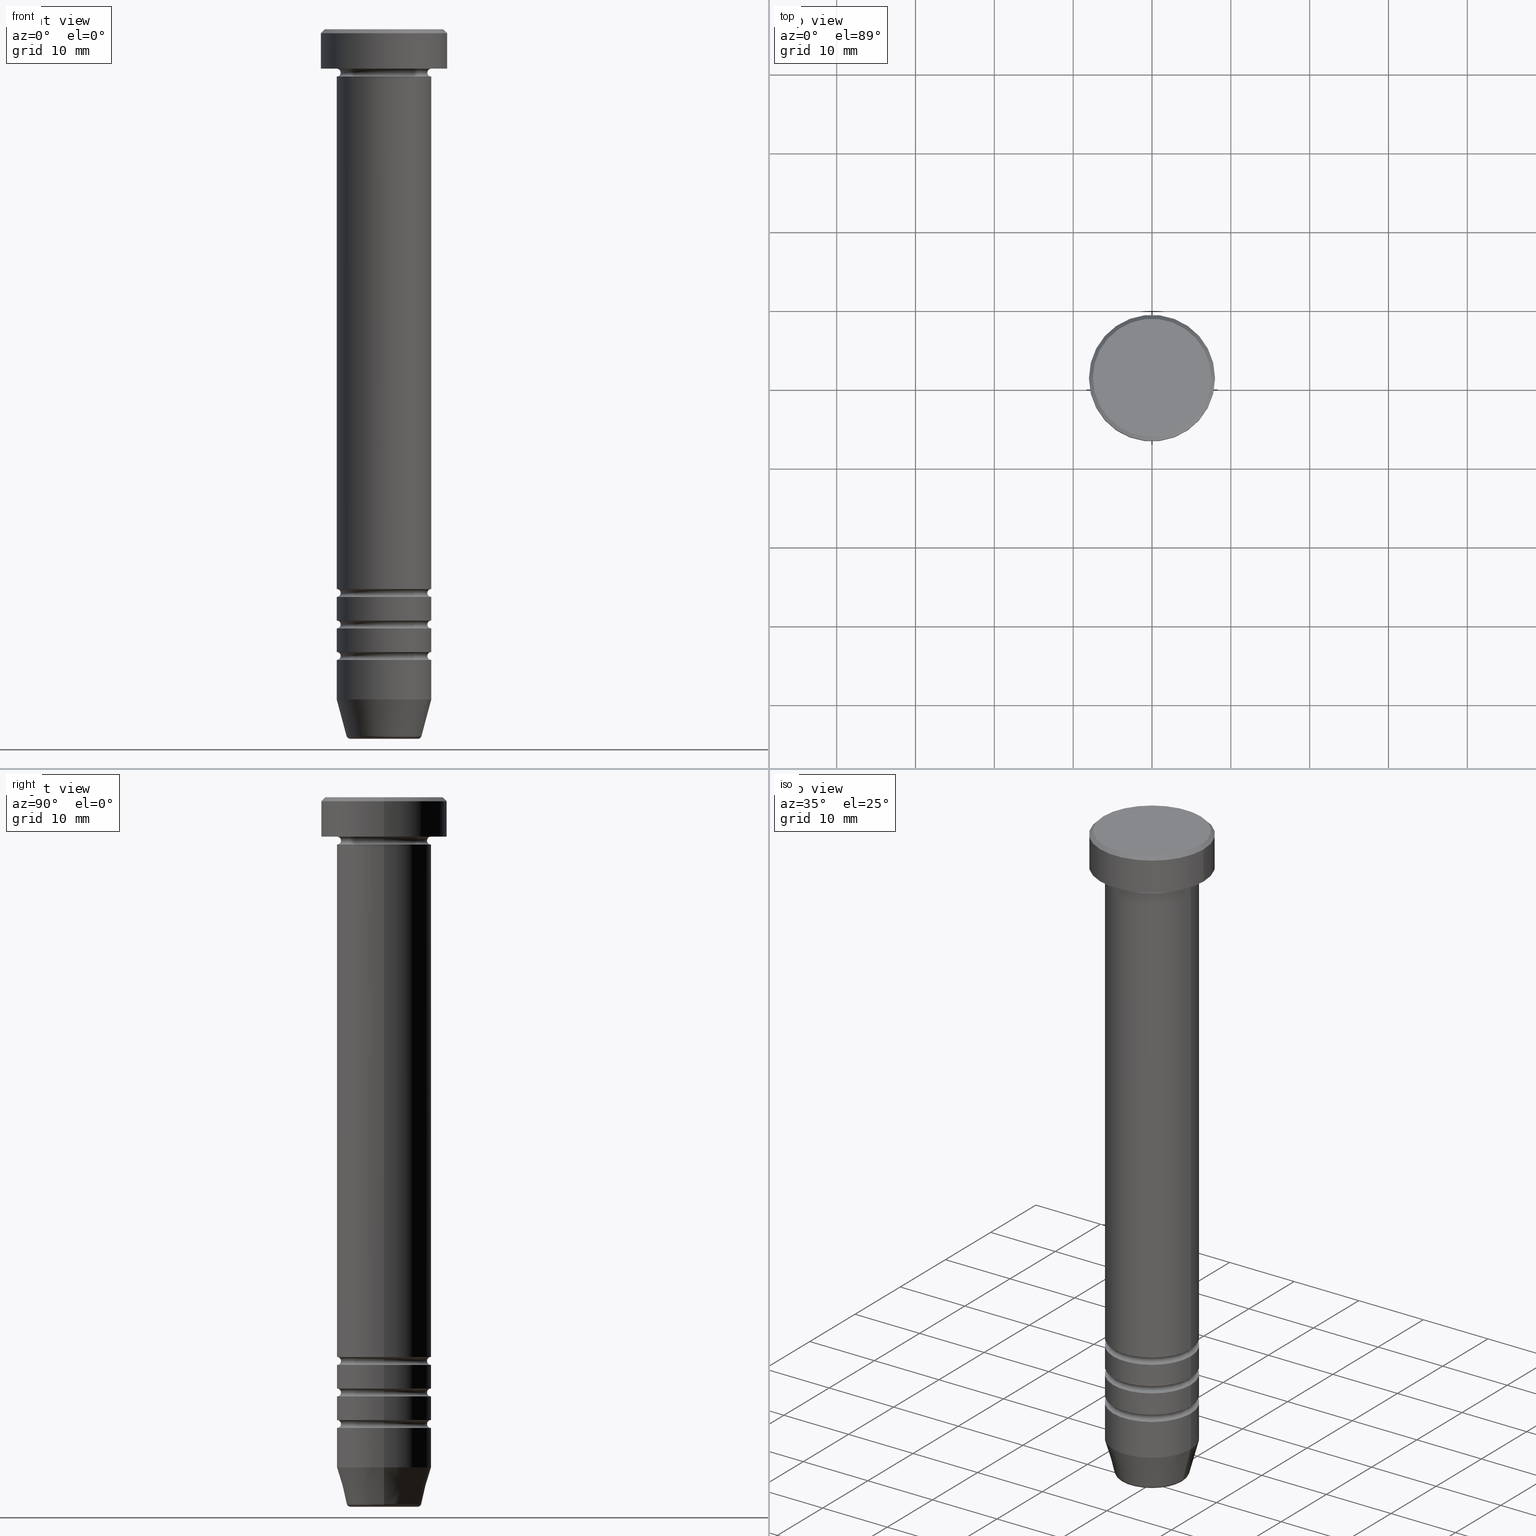
[diagram: canonical four-view strip — front | top / right | iso, engineering-drawing reading convention]
A machine part, canonical four-view strip (front | top / right | iso — engineering-drawing reading convention). The complete STEP part file that produces these views, byte-faithful:
ISO-10303-21;
HEADER;
FILE_DESCRIPTION (( 'STEP AP203' ),
    '1' );
FILE_NAME ('9cf8.STEP',
    '2024-01-03T00:05:37',
    ( '' ),
    ( '' ),
    'SwSTEP 2.0',
    'SolidWorks 2019',
    '' );
FILE_SCHEMA (( 'CONFIG_CONTROL_DESIGN' ));
ENDSEC;

DATA;
#1 = ORIENTED_EDGE ( 'NONE', *, *, #320, .T. ) ;
#2 = CARTESIAN_POINT ( 'NONE',  ( 0.000000000000000000, 0.000000000000000000, -79.49999999999998579 ) ) ;
#3 = AXIS2_PLACEMENT_3D ( 'NONE', #391, #987, #982 ) ;
#4 = CARTESIAN_POINT ( 'NONE',  ( -6.000000000000000000, 7.347880794884119736E-16, -5.500000000000001776 ) ) ;
#5 = CARTESIAN_POINT ( 'NONE',  ( 0.000000000000000000, 0.000000000000000000, 0.000000000000000000 ) ) ;
#6 = VECTOR ( 'NONE', #440, 1000.000000000000000 ) ;
#7 = AXIS2_PLACEMENT_3D ( 'NONE', #370, #959, #219 ) ;
#8 = EDGE_CURVE ( 'NONE', #571, #529, #403, .T. ) ;
#9 = ORIENTED_EDGE ( 'NONE', *, *, #183, .T. ) ;
#10 = CARTESIAN_POINT ( 'NONE',  ( -5.500000000000000000, 7.041719095097280880E-16, -5.500000000000001776 ) ) ;
#11 = LINE ( 'NONE', #894, #713 ) ;
#12 = DIRECTION ( 'NONE',  ( 1.000000000000000000, 0.000000000000000000, 0.000000000000000000 ) ) ;
#13 = ORIENTED_EDGE ( 'NONE', *, *, #422, .T. ) ;
#14 = ADVANCED_FACE ( 'NONE', ( #662 ), #396, .T. ) ;
#15 = CARTESIAN_POINT ( 'NONE',  ( 0.000000000000000000, 0.000000000000000000, -89.50000000000000000 ) ) ;
#16 = VERTEX_POINT ( 'NONE', #828 ) ;
#17 = EDGE_LOOP ( 'NONE', ( #397, #871, #921, #281 ) ) ;
#18 = AXIS2_PLACEMENT_3D ( 'NONE', #344, #687, #981 ) ;
#19 = CARTESIAN_POINT ( 'NONE',  ( 8.000000000000000000, 0.000000000000000000, -5.000000000000000000 ) ) ;
#20 = ORIENTED_EDGE ( 'NONE', *, *, #594, .F. ) ;
#21 = CIRCLE ( 'NONE', #622, 0.5000000000000004441 ) ;
#22 = CARTESIAN_POINT ( 'NONE',  ( -6.000000000000000000, 0.000000000000000000, -5.500000000000001776 ) ) ;
#23 = CARTESIAN_POINT ( 'NONE',  ( 5.999999999999994671, 0.000000000000000000, -79.49999999999998579 ) ) ;
#24 = EDGE_CURVE ( 'NONE', #286, #28, #541, .T. ) ;
#25 = PERSON_AND_ORGANIZATION_ROLE ( 'design_owner' ) ;
#26 = EDGE_LOOP ( 'NONE', ( #535, #307, #1009, #296 ) ) ;
#27 = DIRECTION ( 'NONE',  ( 0.000000000000000000, 0.000000000000000000, -1.000000000000000000 ) ) ;
#28 = VERTEX_POINT ( 'NONE', #186 ) ;
#29 = COORDINATED_UNIVERSAL_TIME_OFFSET ( 1, 0, .AHEAD. ) ;
#30 = ORIENTED_EDGE ( 'NONE', *, *, #617, .F. ) ;
#31 = PLANE ( 'NONE',  #1024 ) ;
#32 = ORIENTED_EDGE ( 'NONE', *, *, #379, .F. ) ;
#33 = AXIS2_PLACEMENT_3D ( 'NONE', #150, #395, #580 ) ;
#34 = CARTESIAN_POINT ( 'NONE',  ( 0.000000000000000000, 0.000000000000000000, -79.49999999999998579 ) ) ;
#35 = PERSON_AND_ORGANIZATION ( #578, #404 ) ;
#36 = ORIENTED_EDGE ( 'NONE', *, *, #919, .T. ) ;
#37 = FACE_OUTER_BOUND ( 'NONE', #642, .T. ) ;
#38 = ORIENTED_EDGE ( 'NONE', *, *, #881, .T. ) ;
#39 = CIRCLE ( 'NONE', #1006, 0.5000000000000004441 ) ;
#40 = EDGE_CURVE ( 'NONE', #1019, #49, #950, .T. ) ;
#41 = CIRCLE ( 'NONE', #603, 6.000000000000000000 ) ;
#42 = AXIS2_PLACEMENT_3D ( 'NONE', #145, #551, #144 ) ;
#43 = CARTESIAN_POINT ( 'NONE',  ( 0.000000000000000000, 0.000000000000000000, -5.000000000000000000 ) ) ;
#44 = APPROVAL_ROLE ( '' ) ;
#45 = DIRECTION ( 'NONE',  ( -1.000000000000000000, 0.000000000000000000, -0.000000000000000000 ) ) ;
#46 = ORIENTED_EDGE ( 'NONE', *, *, #1056, .T. ) ;
#47 = ADVANCED_FACE ( 'NONE', ( #1011 ), #655, .T. ) ;
#48 = DIRECTION ( 'NONE',  ( -0.000000000000000000, -0.000000000000000000, 1.000000000000000000 ) ) ;
#49 = VERTEX_POINT ( 'NONE', #255 ) ;
#50 = CARTESIAN_POINT ( 'NONE',  ( -6.000000000000000888, 7.347880794884120722E-16, -22.50000000000000000 ) ) ;
#51 = ORIENTED_EDGE ( 'NONE', *, *, #527, .T. ) ;
#52 = ORIENTED_EDGE ( 'NONE', *, *, #809, .T. ) ;
#53 = DIRECTION ( 'NONE',  ( -1.000000000000000000, 0.000000000000000000, 0.000000000000000000 ) ) ;
#54 = ADVANCED_BREP_SHAPE_REPRESENTATION ( '9cf8', ( #488, #139, #1040 ), #478 ) ;
#55 = AXIS2_PLACEMENT_3D ( 'NONE', #666, #389, #736 ) ;
#56 = CIRCLE ( 'NONE', #929, 0.5000000000000004441 ) ;
#57 = TOROIDAL_SURFACE ( 'NONE', #703, 6.000000000000000000, 0.5000000000000000000 ) ;
#58 = CARTESIAN_POINT ( 'NONE',  ( 0.000000000000000000, 0.000000000000000000, -72.00000000000000000 ) ) ;
#59 = ADVANCED_FACE ( 'NONE', ( #918 ), #162, .T. ) ;
#60 = CARTESIAN_POINT ( 'NONE',  ( 0.000000000000000000, 0.000000000000000000, -22.50000000000000000 ) ) ;
#61 = CARTESIAN_POINT ( 'NONE',  ( 0.000000000000000000, 0.000000000000000000, 0.000000000000000000 ) ) ;
#62 = FACE_OUTER_BOUND ( 'NONE', #212, .T. ) ;
#63 = EDGE_CURVE ( 'NONE', #992, #484, #813, .T. ) ;
#64 = APPROVAL_PERSON_ORGANIZATION ( #35, #92, #44 ) ;
#65 = CIRCLE ( 'NONE', #297, 5.499999999999995559 ) ;
#66 = CARTESIAN_POINT ( 'NONE',  ( 0.000000000000000000, 0.000000000000000000, 0.000000000000000000 ) ) ;
#67 = TOROIDAL_SURFACE ( 'NONE', #279, 5.999999999999994671, 0.5000000000000000000 ) ;
#68 = VECTOR ( 'NONE', #789, 1000.000000000000000 ) ;
#69 = CARTESIAN_POINT ( 'NONE',  ( 0.000000000000000000, 0.000000000000000000, 0.000000000000000000 ) ) ;
#70 = CARTESIAN_POINT ( 'NONE',  ( 5.999999999999992895, 0.000000000000000000, -78.99999999999998579 ) ) ;
#71 = EDGE_CURVE ( 'NONE', #200, #251, #79, .T. ) ;
#72 = DIRECTION ( 'NONE',  ( 1.000000000000000000, 0.000000000000000000, 0.000000000000000000 ) ) ;
#73 = FACE_OUTER_BOUND ( 'NONE', #724, .T. ) ;
#74 = DIRECTION ( 'NONE',  ( -0.000000000000000000, -0.000000000000000000, 1.000000000000000000 ) ) ;
#75 = CARTESIAN_POINT ( 'NONE',  ( -6.000000000000000888, 7.347880794884120722E-16, -72.00000000000000000 ) ) ;
#76 = ORIENTED_EDGE ( 'NONE', *, *, #295, .T. ) ;
#77 = ADVANCED_FACE ( 'NONE', ( #991 ), #574, .T. ) ;
#78 = DIRECTION ( 'NONE',  ( -0.000000000000000000, -0.000000000000000000, 1.000000000000000000 ) ) ;
#79 = LINE ( 'NONE', #912, #656 ) ;
#80 = AXIS2_PLACEMENT_3D ( 'NONE', #319, #573, #667 ) ;
#81 = ORIENTED_EDGE ( 'NONE', *, *, #8, .F. ) ;
#82 = DIRECTION ( 'NONE',  ( 1.000000000000000000, 0.000000000000000000, 0.000000000000000000 ) ) ;
#83 = AXIS2_PLACEMENT_3D ( 'NONE', #94, #738, #412 ) ;
#84 = DIRECTION ( 'NONE',  ( -0.000000000000000000, -0.000000000000000000, 1.000000000000000000 ) ) ;
#85 = CIRCLE ( 'NONE', #700, 0.5000000000000004441 ) ;
#86 = DIRECTION ( 'NONE',  ( -1.000000000000000000, 0.000000000000000000, 0.000000000000000000 ) ) ;
#87 = CIRCLE ( 'NONE', #701, 4.759553456999433330 ) ;
#88 = EDGE_CURVE ( 'NONE', #484, #239, #278, .T. ) ;
#89 = AXIS2_PLACEMENT_3D ( 'NONE', #60, #464, #623 ) ;
#90 = ORIENTED_EDGE ( 'NONE', *, *, #706, .T. ) ;
#91 = DIRECTION ( 'NONE',  ( -0.000000000000000000, -0.000000000000000000, 1.000000000000000000 ) ) ;
#92 = APPROVAL ( #790, 'NEUR�EN�' ) ;
#93 = CARTESIAN_POINT ( 'NONE',  ( 0.000000000000000000, 0.000000000000000000, -75.49999999999998579 ) ) ;
#94 = CARTESIAN_POINT ( 'NONE',  ( 4.276590543854901227, 0.000000000000000000, -89.50000000000000000 ) ) ;
#95 = VERTEX_POINT ( 'NONE', #1026 ) ;
#96 = FACE_OUTER_BOUND ( 'NONE', #784, .T. ) ;
#97 = DIRECTION ( 'NONE',  ( 0.000000000000000000, 0.000000000000000000, -1.000000000000000000 ) ) ;
#98 = ORIENTED_EDGE ( 'NONE', *, *, #491, .F. ) ;
#99 = PERSON_AND_ORGANIZATION_ROLE ( 'creator' ) ;
#100 = DIRECTION ( 'NONE',  ( 1.000000000000000000, 0.000000000000000000, 0.000000000000000000 ) ) ;
#101 = CARTESIAN_POINT ( 'NONE',  ( -5.999999999999992895, 7.347880794884112834E-16, -71.00000000000000000 ) ) ;
#102 = ORIENTED_EDGE ( 'NONE', *, *, #577, .F. ) ;
#103 = EDGE_CURVE ( 'NONE', #582, #986, #387, .T. ) ;
#104 = COORDINATED_UNIVERSAL_TIME_OFFSET ( 1, 0, .AHEAD. ) ;
#105 = ORIENTED_EDGE ( 'NONE', *, *, #742, .T. ) ;
#106 = APPROVAL_PERSON_ORGANIZATION ( #610, #771, #694 ) ;
#107 = TOROIDAL_SURFACE ( 'NONE', #785, 6.000000000000000000, 0.5000000000000000000 ) ;
#108 = CIRCLE ( 'NONE', #338, 0.4999999999999995559 ) ;
#109 = DIRECTION ( 'NONE',  ( 0.000000000000000000, -1.000000000000000000, 0.000000000000000000 ) ) ;
#110 = EDGE_LOOP ( 'NONE', ( #276, #1035 ) ) ;
#111 = CC_DESIGN_PERSON_AND_ORGANIZATION_ASSIGNMENT ( #363, #838, ( #583 ) ) ;
#112 = AXIS2_PLACEMENT_3D ( 'NONE', #845, #1021, #776 ) ;
#113 = DATE_TIME_ROLE ( 'creation_date' ) ;
#114 = DIRECTION ( 'NONE',  ( -0.000000000000000000, -0.000000000000000000, 1.000000000000000000 ) ) ;
#115 = DIRECTION ( 'NONE',  ( 1.000000000000000000, 0.000000000000000000, 0.000000000000000000 ) ) ;
#116 = DIRECTION ( 'NONE',  ( 1.000000000000000000, 0.000000000000000000, 0.000000000000000000 ) ) ;
#117 = DATE_AND_TIME ( #199, #1023 ) ;
#118 = ORIENTED_EDGE ( 'NONE', *, *, #433, .F. ) ;
#119 = ADVANCED_FACE ( 'NONE', ( #842 ), #584, .F. ) ;
#120 = CYLINDRICAL_SURFACE ( 'NONE', #426, 6.000000000000000000 ) ;
#121 = CARTESIAN_POINT ( 'NONE',  ( 5.999999999999999112, 0.000000000000000000, 0.000000000000000000 ) ) ;
#122 = ORIENTED_EDGE ( 'NONE', *, *, #171, .F. ) ;
#123 = CARTESIAN_POINT ( 'NONE',  ( -5.999999999999996447, 7.347880794884115792E-16, 0.000000000000000000 ) ) ;
#124 = ORIENTED_EDGE ( 'NONE', *, *, #638, .F. ) ;
#125 = LOCAL_TIME ( 1, 5, 37.00000000000000000, #104 ) ;
#126 = ADVANCED_FACE ( 'NONE', ( #933 ), #787, .T. ) ;
#127 = DIRECTION ( 'NONE',  ( -0.000000000000000000, -0.000000000000000000, 1.000000000000000000 ) ) ;
#128 = ORIENTED_EDGE ( 'NONE', *, *, #836, .T. ) ;
#129 = TOROIDAL_SURFACE ( 'NONE', #479, 4.276590543854901227, 0.5000000000000000000 ) ;
#130 = AXIS2_PLACEMENT_3D ( 'NONE', #859, #615, #600 ) ;
#131 = EDGE_CURVE ( 'NONE', #571, #364, #633, .T. ) ;
#132 = CARTESIAN_POINT ( 'NONE',  ( -4.276590543854901227, 5.533042413640409504E-16, -90.00000000000000000 ) ) ;
#133 = DIRECTION ( 'NONE',  ( -0.000000000000000000, -0.000000000000000000, 1.000000000000000000 ) ) ;
#134 = PLANE ( 'NONE',  #196 ) ;
#135 = ORIENTED_EDGE ( 'NONE', *, *, #965, .F. ) ;
#136 = EDGE_CURVE ( 'NONE', #846, #508, #237, .T. ) ;
#137 = DIRECTION ( 'NONE',  ( 1.000000000000000000, 0.000000000000000000, 0.000000000000000000 ) ) ;
#138 = ORIENTED_EDGE ( 'NONE', *, *, #198, .T. ) ;
#139 = MANIFOLD_SOLID_BREP ( 'Zaoblit5', #879 ) ;
#140 = DIRECTION ( 'NONE',  ( 0.000000000000000000, 0.000000000000000000, -1.000000000000000000 ) ) ;
#141 = EDGE_CURVE ( 'NONE', #364, #824, #847, .T. ) ;
#142 = CIRCLE ( 'NONE', #543, 0.5000000000000004441 ) ;
#143 = AXIS2_PLACEMENT_3D ( 'NONE', #1045, #547, #312 ) ;
#144 = DIRECTION ( 'NONE',  ( -1.000000000000000000, 1.224646799147351482E-16, 0.000000000000000000 ) ) ;
#145 = CARTESIAN_POINT ( 'NONE',  ( -5.999999999999994671, 7.347880794884112834E-16, -75.49999999999998579 ) ) ;
#146 = ADVANCED_FACE ( 'NONE', ( #819 ), #129, .T. ) ;
#147 = TOROIDAL_SURFACE ( 'NONE', #945, 5.999999999999994671, 0.5000000000000000000 ) ;
#148 = CARTESIAN_POINT ( 'NONE',  ( 0.000000000000000000, 0.000000000000000000, -0.4999999999999935052 ) ) ;
#149 = CIRCLE ( 'NONE', #398, 6.000000000000000000 ) ;
#150 = CARTESIAN_POINT ( 'NONE',  ( -5.999999999999994671, 0.000000000000000000, -71.50000000000000000 ) ) ;
#151 = ADVANCED_FACE ( 'NONE', ( #249 ), #1002, .T. ) ;
#152 = CIRCLE ( 'NONE', #1004, 4.276590543854901227 ) ;
#153 = AXIS2_PLACEMENT_3D ( 'NONE', #382, #939, #507 ) ;
#154 = FACE_OUTER_BOUND ( 'NONE', #442, .T. ) ;
#155 = VERTEX_POINT ( 'NONE', #10 ) ;
#156 = AXIS2_PLACEMENT_3D ( 'NONE', #708, #534, #685 ) ;
#157 =( NAMED_UNIT ( * ) PLANE_ANGLE_UNIT ( ) SI_UNIT ( $, .RADIAN. ) );
#158 = ORIENTED_EDGE ( 'NONE', *, *, #245, .T. ) ;
#159 = DIRECTION ( 'NONE',  ( -1.000000000000000000, 0.000000000000000000, 0.000000000000000000 ) ) ;
#160 = FACE_OUTER_BOUND ( 'NONE', #436, .T. ) ;
#161 = DIRECTION ( 'NONE',  ( 0.000000000000000000, 0.000000000000000000, -1.000000000000000000 ) ) ;
#162 = CYLINDRICAL_SURFACE ( 'NONE', #762, 5.999999999999996447 ) ;
#163 = EDGE_LOOP ( 'NONE', ( #946, #563, #36, #924 ) ) ;
#164 = DIRECTION ( 'NONE',  ( 1.000000000000000000, 0.000000000000000000, 0.000000000000000000 ) ) ;
#165 = CARTESIAN_POINT ( 'NONE',  ( 0.000000000000000000, 0.000000000000000000, -5.500000000000001776 ) ) ;
#166 = FACE_OUTER_BOUND ( 'NONE', #863, .T. ) ;
#167 = EDGE_CURVE ( 'NONE', #508, #1057, #892, .T. ) ;
#168 = CARTESIAN_POINT ( 'NONE',  ( 0.000000000000000000, 0.000000000000000000, -75.99999999999998579 ) ) ;
#169 = CARTESIAN_POINT ( 'NONE',  ( 6.000000000000000000, 0.000000000000000000, -79.99999999999998579 ) ) ;
#170 = EDGE_LOOP ( 'NONE', ( #1001, #510 ) ) ;
#171 = EDGE_CURVE ( 'NONE', #949, #575, #728, .T. ) ;
#172 = CARTESIAN_POINT ( 'NONE',  ( -5.999999999999999112, 7.347880794884118750E-16, 0.000000000000000000 ) ) ;
#173 = VECTOR ( 'NONE', #983, 1000.000000000000114 ) ;
#174 = DIRECTION ( 'NONE',  ( -1.000000000000000000, 0.000000000000000000, 0.000000000000000000 ) ) ;
#175 = CIRCLE ( 'NONE', #1054, 6.000000000000000000 ) ;
#176 = AXIS2_PLACEMENT_3D ( 'NONE', #794, #114, #607 ) ;
#177 = DIRECTION ( 'NONE',  ( 1.000000000000000000, 0.000000000000000000, 0.000000000000000000 ) ) ;
#178 = ORIENTED_EDGE ( 'NONE', *, *, #462, .F. ) ;
#179 = DIRECTION ( 'NONE',  ( 0.000000000000000000, -0.000000000000000000, 1.000000000000000000 ) ) ;
#180 = ORIENTED_EDGE ( 'NONE', *, *, #638, .T. ) ;
#181 = COORDINATED_UNIVERSAL_TIME_OFFSET ( 1, 0, .AHEAD. ) ;
#182 = DIRECTION ( 'NONE',  ( 0.000000000000000000, 0.000000000000000000, -1.000000000000000000 ) ) ;
#183 = EDGE_CURVE ( 'NONE', #49, #508, #490, .T. ) ;
#184 = ORIENTED_EDGE ( 'NONE', *, *, #1032, .F. ) ;
#185 = ORIENTED_EDGE ( 'NONE', *, *, #965, .T. ) ;
#186 = CARTESIAN_POINT ( 'NONE',  ( -6.000000000000000000, 0.000000000000000000, -5.000000000000000888 ) ) ;
#187 = CARTESIAN_POINT ( 'NONE',  ( 0.000000000000000000, -3.469446951953614189E-15, -22.50000000000000000 ) ) ;
#188 = ORIENTED_EDGE ( 'NONE', *, *, #433, .T. ) ;
#189 = ADVANCED_FACE ( 'NONE', ( #572 ), #866, .F. ) ;
#190 = CALENDAR_DATE ( 2024, 3, 1 ) ;
#191 = ORIENTED_EDGE ( 'NONE', *, *, #594, .T. ) ;
#192 = CIRCLE ( 'NONE', #804, 8.000000000000000000 ) ;
#193 = AXIS2_PLACEMENT_3D ( 'NONE', #825, #179, #82 ) ;
#194 = DIRECTION ( 'NONE',  ( 1.000000000000000000, 0.000000000000000000, 0.000000000000000000 ) ) ;
#195 = ORIENTED_EDGE ( 'NONE', *, *, #800, .T. ) ;
#196 = AXIS2_PLACEMENT_3D ( 'NONE', #888, #798, #712 ) ;
#197 = CARTESIAN_POINT ( 'NONE',  ( 0.000000000000000000, 0.000000000000000000, -75.49999999999998579 ) ) ;
#198 = EDGE_CURVE ( 'NONE', #529, #901, #39, .T. ) ;
#199 = CALENDAR_DATE ( 2024, 3, 1 ) ;
#200 = VERTEX_POINT ( 'NONE', #326 ) ;
#201 = DIRECTION ( 'NONE',  ( 1.000000000000000000, 0.000000000000000000, 0.000000000000000000 ) ) ;
#202 = VERTEX_POINT ( 'NONE', #752 ) ;
#203 = DIRECTION ( 'NONE',  ( 0.000000000000000000, 0.000000000000000000, -1.000000000000000000 ) ) ;
#204 = EDGE_CURVE ( 'NONE', #865, #202, #678, .T. ) ;
#205 = CARTESIAN_POINT ( 'NONE',  ( -6.000000000000000000, 7.347880794884119736E-16, 0.000000000000000000 ) ) ;
#206 = CALENDAR_DATE ( 2024, 3, 1 ) ;
#207 = CARTESIAN_POINT ( 'NONE',  ( 0.000000000000000000, 6.000000000000000000, -22.50000000000000000 ) ) ;
#208 = EDGE_LOOP ( 'NONE', ( #632, #698, #801, #657 ) ) ;
#209 = ORIENTED_EDGE ( 'NONE', *, *, #217, .F. ) ;
#210 = PRODUCT_DEFINITION_FORMATION_WITH_SPECIFIED_SOURCE ( 'LIBOVOLN�', '', #873, .NOT_KNOWN. ) ;
#211 = CARTESIAN_POINT ( 'NONE',  ( 0.000000000000000000, 0.000000000000000000, -71.50000000000000000 ) ) ;
#212 = EDGE_LOOP ( 'NONE', ( #270, #81, #553, #1031 ) ) ;
#213 = AXIS2_PLACEMENT_3D ( 'NONE', #1003, #504, #100 ) ;
#214 = AXIS2_PLACEMENT_3D ( 'NONE', #731, #568, #164 ) ;
#215 = CIRCLE ( 'NONE', #932, 0.5000000000000004441 ) ;
#216 = FACE_OUTER_BOUND ( 'NONE', #770, .T. ) ;
#217 = EDGE_CURVE ( 'NONE', #1019, #497, #152, .T. ) ;
#218 = CARTESIAN_POINT ( 'NONE',  ( -4.660254037844381081, 5.707165190659649910E-16, -90.00000000000000000 ) ) ;
#219 = DIRECTION ( 'NONE',  ( 1.000000000000000000, 0.000000000000000000, 0.000000000000000000 ) ) ;
#220 = CIRCLE ( 'NONE', #962, 8.000000000000000000 ) ;
#221 = AXIS2_PLACEMENT_3D ( 'NONE', #339, #243, #492 ) ;
#222 = TOROIDAL_SURFACE ( 'NONE', #830, 5.999999999999994671, 0.5000000000000000000 ) ;
#223 = CIRCLE ( 'NONE', #130, 5.999999999999992895 ) ;
#224 = AXIS2_PLACEMENT_3D ( 'NONE', #226, #957, #885 ) ;
#225 = EDGE_CURVE ( 'NONE', #1037, #300, #579, .T. ) ;
#226 = CARTESIAN_POINT ( 'NONE',  ( 0.000000000000000000, 0.000000000000000000, -79.49999999999998579 ) ) ;
#227 = ORIENTED_EDGE ( 'NONE', *, *, #167, .F. ) ;
#228 = DIRECTION ( 'NONE',  ( -0.000000000000000000, -0.000000000000000000, 1.000000000000000000 ) ) ;
#229 = CARTESIAN_POINT ( 'NONE',  ( 5.999999999999994671, 7.347880794884112834E-16, -75.49999999999998579 ) ) ;
#230 = EDGE_CURVE ( 'NONE', #986, #575, #65, .T. ) ;
#231 = DIRECTION ( 'NONE',  ( 1.000000000000000000, 0.000000000000000000, 0.000000000000000000 ) ) ;
#232 = ADVANCED_FACE ( 'NONE', ( #646 ), #978, .T. ) ;
#233 = DIRECTION ( 'NONE',  ( 1.000000000000000000, 0.000000000000000000, 0.000000000000000000 ) ) ;
#234 = CARTESIAN_POINT ( 'NONE',  ( 0.000000000000000000, 0.000000000000000000, 0.000000000000000000 ) ) ;
#235 = CARTESIAN_POINT ( 'NONE',  ( -5.999999999999998224, 7.347880794884118750E-16, -74.99999999999998579 ) ) ;
#236 = CC_DESIGN_APPROVAL ( #771, ( #583 ) ) ;
#237 = CIRCLE ( 'NONE', #375, 6.000000000000000000 ) ;
#238 = TOROIDAL_SURFACE ( 'NONE', #309, 4.276590543854901227, 0.5000000000000000000 ) ;
#239 = VERTEX_POINT ( 'NONE', #723 ) ;
#240 = AXIS2_PLACEMENT_3D ( 'NONE', #455, #719, #970 ) ;
#241 = DIRECTION ( 'NONE',  ( 1.000000000000000000, 0.000000000000000000, 0.000000000000000000 ) ) ;
#242 = CARTESIAN_POINT ( 'NONE',  ( 5.500000000000000000, 0.000000000000000000, -5.500000000000001776 ) ) ;
#243 = DIRECTION ( 'NONE',  ( -0.000000000000000000, -0.000000000000000000, 1.000000000000000000 ) ) ;
#244 = EDGE_LOOP ( 'NONE', ( #644, #138, #670, #608 ) ) ;
#245 = EDGE_CURVE ( 'NONE', #1057, #292, #602, .T. ) ;
#246 = FACE_OUTER_BOUND ( 'NONE', #663, .T. ) ;
#247 = ORIENTED_EDGE ( 'NONE', *, *, #420, .T. ) ;
#248 = DIRECTION ( 'NONE',  ( -0.000000000000000000, -0.000000000000000000, 1.000000000000000000 ) ) ;
#249 = FACE_OUTER_BOUND ( 'NONE', #458, .T. ) ;
#250 = CARTESIAN_POINT ( 'NONE',  ( 0.000000000000000000, 0.000000000000000000, -72.00000000000000000 ) ) ;
#251 = VERTEX_POINT ( 'NONE', #1052 ) ;
#252 = DIRECTION ( 'NONE',  ( 1.000000000000000000, 0.000000000000000000, 0.000000000000000000 ) ) ;
#253 = ORIENTED_EDGE ( 'NONE', *, *, #557, .F. ) ;
#254 = DIRECTION ( 'NONE',  ( -0.000000000000000000, -0.000000000000000000, 1.000000000000000000 ) ) ;
#255 = CARTESIAN_POINT ( 'NONE',  ( 4.759553456999433330, 0.000000000000000000, -89.62940952255125637 ) ) ;
#256 = CARTESIAN_POINT ( 'NONE',  ( 6.000000000000000000, 0.000000000000000000, -22.50000000000000000 ) ) ;
#257 = DIRECTION ( 'NONE',  ( -0.000000000000000000, -0.000000000000000000, 1.000000000000000000 ) ) ;
#258 = EDGE_LOOP ( 'NONE', ( #264, #423, #734, #994 ) ) ;
#259 = ORIENTED_EDGE ( 'NONE', *, *, #136, .F. ) ;
#260 = AXIS2_PLACEMENT_3D ( 'NONE', #324, #581, #182 ) ;
#261 = ADVANCED_FACE ( 'NONE', ( #475 ), #107, .F. ) ;
#262 = DIRECTION ( 'NONE',  ( -0.000000000000000000, -0.000000000000000000, 1.000000000000000000 ) ) ;
#263 = CIRCLE ( 'NONE', #763, 4.276590543854901227 ) ;
#264 = ORIENTED_EDGE ( 'NONE', *, *, #732, .T. ) ;
#265 = CYLINDRICAL_SURFACE ( 'NONE', #848, 6.000000000000000000 ) ;
#266 = ORIENTED_EDGE ( 'NONE', *, *, #413, .F. ) ;
#267 = SECURITY_CLASSIFICATION_LEVEL ( 'unclassified' ) ;
#268 = EDGE_CURVE ( 'NONE', #1014, #937, #928, .T. ) ;
#269 = PLANE ( 'NONE',  #1042 ) ;
#270 = ORIENTED_EDGE ( 'NONE', *, *, #198, .F. ) ;
#271 = EDGE_CURVE ( 'NONE', #711, #251, #192, .T. ) ;
#272 = FACE_OUTER_BOUND ( 'NONE', #329, .T. ) ;
#273 = ORIENTED_EDGE ( 'NONE', *, *, #420, .F. ) ;
#274 = LINE ( 'NONE', #696, #6 ) ;
#275 = FACE_BOUND ( 'NONE', #682, .T. ) ;
#276 = ORIENTED_EDGE ( 'NONE', *, *, #1048, .F. ) ;
#277 = ADVANCED_FACE ( 'NONE', ( #747 ), #465, .T. ) ;
#278 = CIRCLE ( 'NONE', #213, 6.000000000000000000 ) ;
#279 = AXIS2_PLACEMENT_3D ( 'NONE', #34, #688, #786 ) ;
#280 = DIRECTION ( 'NONE',  ( -1.000000000000000000, 0.000000000000000000, -0.000000000000000000 ) ) ;
#281 = ORIENTED_EDGE ( 'NONE', *, *, #88, .T. ) ;
#282 = AXIS2_PLACEMENT_3D ( 'NONE', #435, #287, #783 ) ;
#283 = ADVANCED_FACE ( 'NONE', ( #246 ), #908, .T. ) ;
#284 = CARTESIAN_POINT ( 'NONE',  ( 0.000000000000000000, 0.000000000000000000, -5.500000000000001776 ) ) ;
#285 = DATE_AND_TIME ( #349, #618 ) ;
#286 = VERTEX_POINT ( 'NONE', #735 ) ;
#287 = DIRECTION ( 'NONE',  ( 0.000000000000000000, 0.000000000000000000, -1.000000000000000000 ) ) ;
#288 = ORIENTED_EDGE ( 'NONE', *, *, #706, .F. ) ;
#289 = DIRECTION ( 'NONE',  ( -0.000000000000000000, -0.000000000000000000, 1.000000000000000000 ) ) ;
#290 = ORIENTED_EDGE ( 'NONE', *, *, #782, .F. ) ;
#291 = DIRECTION ( 'NONE',  ( -0.000000000000000000, -0.000000000000000000, 1.000000000000000000 ) ) ;
#292 = VERTEX_POINT ( 'NONE', #483 ) ;
#293 = CIRCLE ( 'NONE', #80, 7.500000000000009770 ) ;
#294 = ORIENTED_EDGE ( 'NONE', *, *, #268, .F. ) ;
#295 = EDGE_CURVE ( 'NONE', #937, #202, #142, .T. ) ;
#296 = ORIENTED_EDGE ( 'NONE', *, *, #40, .F. ) ;
#297 = AXIS2_PLACEMENT_3D ( 'NONE', #2, #476, #499 ) ;
#298 = AXIS2_PLACEMENT_3D ( 'NONE', #521, #447, #926 ) ;
#299 = CIRCLE ( 'NONE', #176, 5.999999999999992895 ) ;
#300 = VERTEX_POINT ( 'NONE', #75 ) ;
#301 = DIRECTION ( 'NONE',  ( 1.000000000000000000, 0.000000000000000000, 0.000000000000000000 ) ) ;
#302 = DIRECTION ( 'NONE',  ( -1.224646799147353207E-16, 1.000000000000000000, 0.000000000000000000 ) ) ;
#303 = ORIENTED_EDGE ( 'NONE', *, *, #491, .T. ) ;
#304 = EDGE_CURVE ( 'NONE', #155, #28, #85, .T. ) ;
#305 = CIRCLE ( 'NONE', #651, 5.499999999999995559 ) ;
#306 = CARTESIAN_POINT ( 'NONE',  ( 5.999999999999994671, 7.347880794884112834E-16, -71.50000000000000000 ) ) ;
#307 = ORIENTED_EDGE ( 'NONE', *, *, #462, .T. ) ;
#308 = AXIS2_PLACEMENT_3D ( 'NONE', #61, #289, #137 ) ;
#309 = AXIS2_PLACEMENT_3D ( 'NONE', #384, #228, #597 ) ;
#310 = ADVANCED_FACE ( 'NONE', ( #96 ), #222, .F. ) ;
#311 = AXIS2_PLACEMENT_3D ( 'NONE', #207, #449, #45 ) ;
#312 = DIRECTION ( 'NONE',  ( 1.000000000000000000, 0.000000000000000000, 0.000000000000000000 ) ) ;
#313 = CARTESIAN_POINT ( 'NONE',  ( -6.000000000000000000, 7.347880794884119736E-16, -22.50000000000000000 ) ) ;
#314 = ORIENTED_EDGE ( 'NONE', *, *, #627, .T. ) ;
#315 = DIRECTION ( 'NONE',  ( -1.000000000000000000, 1.224646799147351482E-16, 0.000000000000000000 ) ) ;
#316 = DIRECTION ( 'NONE',  ( 1.000000000000000000, 0.000000000000000000, 0.000000000000000000 ) ) ;
#317 = FACE_OUTER_BOUND ( 'NONE', #26, .T. ) ;
#318 = TOROIDAL_SURFACE ( 'NONE', #876, 5.999999999999994671, 0.5000000000000000000 ) ;
#319 = CARTESIAN_POINT ( 'NONE',  ( 0.000000000000000000, 0.000000000000000000, 0.000000000000000000 ) ) ;
#320 = EDGE_CURVE ( 'NONE', #824, #364, #357, .T. ) ;
#321 = DIRECTION ( 'NONE',  ( 0.000000000000000000, 0.000000000000000000, -1.000000000000000000 ) ) ;
#322 = ORIENTED_EDGE ( 'NONE', *, *, #717, .T. ) ;
#323 = DIRECTION ( 'NONE',  ( 1.000000000000000000, 0.000000000000000000, 0.000000000000000000 ) ) ;
#324 = CARTESIAN_POINT ( 'NONE',  ( 6.000000000000000000, 0.000000000000000000, -5.500000000000001776 ) ) ;
#325 = ORIENTED_EDGE ( 'NONE', *, *, #63, .F. ) ;
#326 = CARTESIAN_POINT ( 'NONE',  ( 7.500000000000009770, 9.491012693391993703E-16, 0.000000000000000000 ) ) ;
#327 = DIRECTION ( 'NONE',  ( -0.7071067811865451302, 0.000000000000000000, -0.7071067811865500152 ) ) ;
#328 = DIRECTION ( 'NONE',  ( 1.000000000000000000, 0.000000000000000000, 0.000000000000000000 ) ) ;
#329 = EDGE_LOOP ( 'NONE', ( #837, #955, #690, #501 ) ) ;
#330 = EDGE_CURVE ( 'NONE', #869, #239, #354, .T. ) ;
#331 = CARTESIAN_POINT ( 'NONE',  ( 5.999999999999996447, 0.000000000000000000, 0.000000000000000000 ) ) ;
#332 = LINE ( 'NONE', #676, #1041 ) ;
#333 = ORIENTED_EDGE ( 'NONE', *, *, #887, .T. ) ;
#334 = AXIS2_PLACEMENT_3D ( 'NONE', #886, #648, #727 ) ;
#335 = ADVANCED_FACE ( 'NONE', ( #585 ), #635, .F. ) ;
#336 = AXIS2_PLACEMENT_3D ( 'NONE', #418, #675, #753 ) ;
#337 = ORIENTED_EDGE ( 'NONE', *, *, #1017, .T. ) ;
#338 = AXIS2_PLACEMENT_3D ( 'NONE', #392, #898, #570 ) ;
#339 = CARTESIAN_POINT ( 'NONE',  ( 0.000000000000000000, 0.000000000000000000, 0.000000000000000000 ) ) ;
#340 = AXIS2_PLACEMENT_3D ( 'NONE', #542, #877, #140 ) ;
#341 = DIRECTION ( 'NONE',  ( 1.000000000000000000, 0.000000000000000000, 0.000000000000000000 ) ) ;
#342 = ORIENTED_EDGE ( 'NONE', *, *, #141, .F. ) ;
#343 = CC_DESIGN_PERSON_AND_ORGANIZATION_ASSIGNMENT ( #503, #25, ( #873 ) ) ;
#344 = CARTESIAN_POINT ( 'NONE',  ( 0.000000000000000000, 0.000000000000000000, -74.99999999999998579 ) ) ;
#345 = DIRECTION ( 'NONE',  ( 0.000000000000000000, 0.000000000000000000, -1.000000000000000000 ) ) ;
#346 = APPROVAL_DATE_TIME ( #758, #92 ) ;
#347 = ORIENTED_EDGE ( 'NONE', *, *, #552, .T. ) ;
#348 = CARTESIAN_POINT ( 'NONE',  ( 0.000000000000000000, 0.000000000000000000, -90.00000000000000000 ) ) ;
#349 = CALENDAR_DATE ( 2024, 3, 1 ) ;
#350 = ORIENTED_EDGE ( 'NONE', *, *, #141, .T. ) ;
#351 = EDGE_CURVE ( 'NONE', #795, #846, #531, .T. ) ;
#352 = DIRECTION ( 'NONE',  ( 0.000000000000000000, 0.000000000000000000, -1.000000000000000000 ) ) ;
#353 = ORIENTED_EDGE ( 'NONE', *, *, #383, .T. ) ;
#354 = LINE ( 'NONE', #671, #495 ) ;
#355 = LINE ( 'NONE', #989, #716 ) ;
#356 = DATE_AND_TIME ( #190, #425 ) ;
#357 = CIRCLE ( 'NONE', #967, 6.000000000000000000 ) ;
#358 = TOROIDAL_SURFACE ( 'NONE', #915, 5.999999999999994671, 0.5000000000000000000 ) ;
#359 = DIRECTION ( 'NONE',  ( -0.000000000000000000, -0.000000000000000000, 1.000000000000000000 ) ) ;
#360 = EDGE_LOOP ( 'NONE', ( #191, #605, #891, #227 ) ) ;
#361 = TOROIDAL_SURFACE ( 'NONE', #224, 5.999999999999994671, 0.5000000000000000000 ) ;
#362 = DIRECTION ( 'NONE',  ( -0.000000000000000000, -0.000000000000000000, 1.000000000000000000 ) ) ;
#363 = PERSON_AND_ORGANIZATION ( #578, #404 ) ;
#364 = VERTEX_POINT ( 'NONE', #614 ) ;
#365 = FACE_OUTER_BOUND ( 'NONE', #110, .T. ) ;
#366 = VERTEX_POINT ( 'NONE', #453 ) ;
#367 = ADVANCED_FACE ( 'NONE', ( #715 ), #480, .T. ) ;
#368 = DIRECTION ( 'NONE',  ( -0.000000000000000000, -0.000000000000000000, 1.000000000000000000 ) ) ;
#369 = ORIENTED_EDGE ( 'NONE', *, *, #993, .F. ) ;
#370 = CARTESIAN_POINT ( 'NONE',  ( 0.000000000000000000, 0.000000000000000000, -5.500000000000001776 ) ) ;
#371 = ORIENTED_EDGE ( 'NONE', *, *, #919, .F. ) ;
#372 = CIRCLE ( 'NONE', #33, 0.5000000000000004441 ) ;
#373 = EDGE_CURVE ( 'NONE', #300, #427, #175, .T. ) ;
#374 = DIRECTION ( 'NONE',  ( -1.000000000000000000, 0.000000000000000000, 0.000000000000000000 ) ) ;
#375 = AXIS2_PLACEMENT_3D ( 'NONE', #966, #546, #485 ) ;
#376 = AXIS2_PLACEMENT_3D ( 'NONE', #817, #973, #549 ) ;
#377 = CIRCLE ( 'NONE', #659, 6.000000000000000000 ) ;
#378 = DIRECTION ( 'NONE',  ( -1.000000000000000000, 0.000000000000000000, 0.000000000000000000 ) ) ;
#379 = EDGE_CURVE ( 'NONE', #16, #1037, #532, .T. ) ;
#380 = CARTESIAN_POINT ( 'NONE',  ( 0.000000000000000000, 0.000000000000000000, -79.49999999999998579 ) ) ;
#381 = EDGE_LOOP ( 'NONE', ( #599, #686, #9, #259 ) ) ;
#382 = CARTESIAN_POINT ( 'NONE',  ( 0.000000000000000000, 0.000000000000000000, -79.49999999999998579 ) ) ;
#383 = EDGE_CURVE ( 'NONE', #756, #251, #438, .T. ) ;
#384 = CARTESIAN_POINT ( 'NONE',  ( 0.000000000000000000, 0.000000000000000000, -89.50000000000000000 ) ) ;
#385 = ORIENTED_EDGE ( 'NONE', *, *, #268, .T. ) ;
#386 = APPROVAL_PERSON_ORGANIZATION ( #519, #971, #917 ) ;
#387 = CIRCLE ( 'NONE', #880, 0.5000000000000004441 ) ;
#388 = DIRECTION ( 'NONE',  ( -0.000000000000000000, -0.000000000000000000, 1.000000000000000000 ) ) ;
#389 = DIRECTION ( 'NONE',  ( 1.224646799147353207E-16, 1.000000000000000000, 0.000000000000000000 ) ) ;
#390 = FACE_OUTER_BOUND ( 'NONE', #244, .T. ) ;
#391 = CARTESIAN_POINT ( 'NONE',  ( 0.000000000000000000, 0.000000000000000000, -90.00000000000000000 ) ) ;
#392 = CARTESIAN_POINT ( 'NONE',  ( -4.276590543854901227, 5.237312920795743091E-16, -89.50000000000000000 ) ) ;
#393 = EDGE_CURVE ( 'NONE', #846, #292, #940, .T. ) ;
#394 = DIRECTION ( 'NONE',  ( -0.000000000000000000, -0.000000000000000000, 1.000000000000000000 ) ) ;
#395 = DIRECTION ( 'NONE',  ( -0.000000000000000000, -1.000000000000000000, -0.000000000000000000 ) ) ;
#396 = CYLINDRICAL_SURFACE ( 'NONE', #221, 8.000000000000000000 ) ;
#397 = ORIENTED_EDGE ( 'NONE', *, *, #1000, .F. ) ;
#398 = AXIS2_PLACEMENT_3D ( 'NONE', #250, #733, #316 ) ;
#399 = DIRECTION ( 'NONE',  ( 1.000000000000000000, 0.000000000000000000, 0.000000000000000000 ) ) ;
#400 = DIRECTION ( 'NONE',  ( 1.000000000000000000, 0.000000000000000000, 0.000000000000000000 ) ) ;
#401 = DIRECTION ( 'NONE',  ( 0.7071067811865451302, 8.659560562354904508E-17, -0.7071067811865500152 ) ) ;
#402 = EDGE_LOOP ( 'NONE', ( #709, #526, #1039, #294 ) ) ;
#403 = CIRCLE ( 'NONE', #334, 5.999999999999992895 ) ;
#404 = ORGANIZATION ( 'NEUR�EN�', 'NEUR�EN�', '' ) ;
#405 = AXIS2_PLACEMENT_3D ( 'NONE', #910, #822, #416 ) ;
#406 = CARTESIAN_POINT ( 'NONE',  ( 0.000000000000000000, 0.000000000000000000, -79.99999999999998579 ) ) ;
#407 = TOROIDAL_SURFACE ( 'NONE', #376, 5.999999999999994671, 0.5000000000000000000 ) ;
#408 = DIRECTION ( 'NONE',  ( -0.000000000000000000, -0.000000000000000000, 1.000000000000000000 ) ) ;
#409 = CONICAL_SURFACE ( 'NONE', #1025, 4.660254037844381081, 0.2617993877991502405 ) ;
#410 = DIRECTION ( 'NONE',  ( 1.000000000000000000, 0.000000000000000000, 0.000000000000000000 ) ) ;
#411 = DIRECTION ( 'NONE',  ( 1.000000000000000000, 0.000000000000000000, 0.000000000000000000 ) ) ;
#412 = DIRECTION ( 'NONE',  ( 0.000000000000000000, 0.000000000000000000, -1.000000000000000000 ) ) ;
#413 = EDGE_CURVE ( 'NONE', #795, #49, #87, .T. ) ;
#414 = EDGE_LOOP ( 'NONE', ( #612, #851, #616, #739 ) ) ;
#415 = DIRECTION ( 'NONE',  ( 1.000000000000000000, 0.000000000000000000, 0.000000000000000000 ) ) ;
#416 = DIRECTION ( 'NONE',  ( 1.000000000000000000, 0.000000000000000000, 0.000000000000000000 ) ) ;
#417 = APPLICATION_PROTOCOL_DEFINITION ( 'international standard', 'config_control_design', 1994, #640 ) ;
#418 = CARTESIAN_POINT ( 'NONE',  ( 0.000000000000000000, 0.000000000000000000, 0.000000000000000000 ) ) ;
#419 = ORIENTED_EDGE ( 'NONE', *, *, #230, .F. ) ;
#420 = EDGE_CURVE ( 'NONE', #529, #824, #861, .T. ) ;
#421 = ORIENTED_EDGE ( 'NONE', *, *, #167, .T. ) ;
#422 = EDGE_CURVE ( 'NONE', #672, #756, #513, .T. ) ;
#423 = ORIENTED_EDGE ( 'NONE', *, *, #577, .T. ) ;
#424 = DIRECTION ( 'NONE',  ( 1.000000000000000000, 0.000000000000000000, 0.000000000000000000 ) ) ;
#425 = LOCAL_TIME ( 1, 5, 37.00000000000000000, #434 ) ;
#426 = AXIS2_PLACEMENT_3D ( 'NONE', #793, #704, #844 ) ;
#427 = VERTEX_POINT ( 'NONE', #461 ) ;
#428 = CIRCLE ( 'NONE', #884, 6.000000000000000000 ) ;
#429 = CARTESIAN_POINT ( 'NONE',  ( -5.999999999999994671, 0.000000000000000000, -79.49999999999998579 ) ) ;
#430 = ORIENTED_EDGE ( 'NONE', *, *, #131, .F. ) ;
#431 = DIRECTION ( 'NONE',  ( -0.000000000000000000, -1.000000000000000000, -0.000000000000000000 ) ) ;
#432 = DIRECTION ( 'NONE',  ( 0.000000000000000000, 0.000000000000000000, -1.000000000000000000 ) ) ;
#433 = EDGE_CURVE ( 'NONE', #155, #992, #586, .T. ) ;
#434 = COORDINATED_UNIVERSAL_TIME_OFFSET ( 1, 0, .AHEAD. ) ;
#435 = CARTESIAN_POINT ( 'NONE',  ( 0.000000000000000000, 0.000000000000000000, 0.000000000000000000 ) ) ;
#436 = EDGE_LOOP ( 'NONE', ( #941, #185, #760, #629 ) ) ;
#437 = PRODUCT_DEFINITION ( 'NEZN�M�', '', #210, #1015 ) ;
#438 = LINE ( 'NONE', #778, #560 ) ;
#439 = ORIENTED_EDGE ( 'NONE', *, *, #271, .T. ) ;
#440 = DIRECTION ( 'NONE',  ( -0.000000000000000000, -0.000000000000000000, 1.000000000000000000 ) ) ;
#441 = FACE_OUTER_BOUND ( 'NONE', #414, .T. ) ;
#442 = EDGE_LOOP ( 'NONE', ( #456, #781, #831, #624 ) ) ;
#443 = DIRECTION ( 'NONE',  ( 1.000000000000000000, 0.000000000000000000, 0.000000000000000000 ) ) ;
#444 = ORIENTED_EDGE ( 'NONE', *, *, #1000, .T. ) ;
#445 = CARTESIAN_POINT ( 'NONE',  ( 5.999999999999994671, 7.347880794884112834E-16, -79.49999999999998579 ) ) ;
#446 = AXIS2_PLACEMENT_3D ( 'NONE', #673, #84, #399 ) ;
#447 = DIRECTION ( 'NONE',  ( 0.000000000000000000, -1.000000000000000000, 0.000000000000000000 ) ) ;
#448 = TOROIDAL_SURFACE ( 'NONE', #496, 6.000000000000000000, 0.5000000000000000000 ) ;
#449 = DIRECTION ( 'NONE',  ( 0.000000000000000000, 0.000000000000000000, -1.000000000000000000 ) ) ;
#450 = ORIENTED_EDGE ( 'NONE', *, *, #40, .T. ) ;
#451 = ADVANCED_FACE ( 'NONE', ( #154 ), #407, .F. ) ;
#452 = DIRECTION ( 'NONE',  ( -0.000000000000000000, -0.000000000000000000, 1.000000000000000000 ) ) ;
#453 = CARTESIAN_POINT ( 'NONE',  ( -7.500000000000009770, 0.000000000000000000, 0.000000000000000000 ) ) ;
#454 = EDGE_LOOP ( 'NONE', ( #122, #124, #493, #916 ) ) ;
#455 = CARTESIAN_POINT ( 'NONE',  ( 0.000000000000000000, 0.000000000000000000, -0.4999999999999935052 ) ) ;
#456 = ORIENTED_EDGE ( 'NONE', *, *, #373, .T. ) ;
#457 = ADVANCED_FACE ( 'NONE', ( #73 ), #468, .T. ) ;
#458 = EDGE_LOOP ( 'NONE', ( #677, #692, #135, #935 ) ) ;
#459 = CYLINDRICAL_SURFACE ( 'NONE', #792, 5.999999999999996447 ) ;
#460 = EDGE_LOOP ( 'NONE', ( #791, #903, #421, #974 ) ) ;
#461 = CARTESIAN_POINT ( 'NONE',  ( 6.000000000000000000, 0.000000000000000000, -72.00000000000000000 ) ) ;
#462 = EDGE_CURVE ( 'NONE', #497, #795, #108, .T. ) ;
#463 = CARTESIAN_POINT ( 'NONE',  ( 0.000000000000000000, 0.000000000000000000, 0.000000000000000000 ) ) ;
#464 = DIRECTION ( 'NONE',  ( -0.000000000000000000, -0.000000000000000000, 1.000000000000000000 ) ) ;
#465 = CONICAL_SURFACE ( 'NONE', #3, 4.660254037844381081, 0.2617993877991502405 ) ;
#466 = AXIS2_PLACEMENT_3D ( 'NONE', #429, #870, #1034 ) ;
#467 = TOROIDAL_SURFACE ( 'NONE', #606, 5.999999999999994671, 0.5000000000000000000 ) ;
#468 = CYLINDRICAL_SURFACE ( 'NONE', #832, 5.999999999999999112 ) ;
#469 = DIRECTION ( 'NONE',  ( -1.000000000000000000, 0.000000000000000000, 0.000000000000000000 ) ) ;
#470 = ADVANCED_FACE ( 'NONE', ( #160 ), #358, .F. ) ;
#471 = CARTESIAN_POINT ( 'NONE',  ( -5.499999999999995559, 7.041719095097278907E-16, -75.49999999999998579 ) ) ;
#472 = CC_DESIGN_PERSON_AND_ORGANIZATION_ASSIGNMENT ( #856, #598, ( #210 ) ) ;
#473 = DIRECTION ( 'NONE',  ( -0.000000000000000000, -0.000000000000000000, 1.000000000000000000 ) ) ;
#474 = CARTESIAN_POINT ( 'NONE',  ( 0.000000000000000000, 0.000000000000000000, 0.000000000000000000 ) ) ;
#475 = FACE_OUTER_BOUND ( 'NONE', #843, .T. ) ;
#476 = DIRECTION ( 'NONE',  ( 0.000000000000000000, 0.000000000000000000, -1.000000000000000000 ) ) ;
#477 =( NAMED_UNIT ( * ) SI_UNIT ( $, .STERADIAN. ) SOLID_ANGLE_UNIT ( ) );
#478 =( GEOMETRIC_REPRESENTATION_CONTEXT ( 3 ) GLOBAL_UNCERTAINTY_ASSIGNED_CONTEXT ( ( #681 ) ) GLOBAL_UNIT_ASSIGNED_CONTEXT ( ( #555, #157, #477 ) ) REPRESENTATION_CONTEXT ( 'NONE', 'WORKASPACE' ) );
#479 = AXIS2_PLACEMENT_3D ( 'NONE', #15, #74, #410 ) ;
#480 = CONICAL_SURFACE ( 'NONE', #814, 7.500000000000009770, 0.7853981633974447263 ) ;
#481 = ADVANCED_FACE ( 'NONE', ( #166 ), #489, .T. ) ;
#482 = CIRCLE ( 'NONE', #7, 5.500000000000000000 ) ;
#483 = CARTESIAN_POINT ( 'NONE',  ( -6.000000000000000000, 7.347880794884119736E-16, -79.99999999999998579 ) ) ;
#484 = VERTEX_POINT ( 'NONE', #1012 ) ;
#485 = DIRECTION ( 'NONE',  ( 1.000000000000000000, 0.000000000000000000, 0.000000000000000000 ) ) ;
#486 = CARTESIAN_POINT ( 'NONE',  ( 0.000000000000000000, 0.000000000000000000, 0.000000000000000000 ) ) ;
#487 = ORIENTED_EDGE ( 'NONE', *, *, #373, .F. ) ;
#488 = MANIFOLD_SOLID_BREP ( 'Zkosen�1', #812 ) ;
#489 = PLANE ( 'NONE',  #193 ) ;
#490 = LINE ( 'NONE', #1058, #173 ) ;
#491 = EDGE_CURVE ( 'NONE', #16, #202, #1008, .T. ) ;
#492 = DIRECTION ( 'NONE',  ( 1.000000000000000000, 0.000000000000000000, 0.000000000000000000 ) ) ;
#493 = ORIENTED_EDGE ( 'NONE', *, *, #103, .T. ) ;
#494 = AXIS2_PLACEMENT_3D ( 'NONE', #997, #593, #86 ) ;
#495 = VECTOR ( 'NONE', #999, 1000.000000000000000 ) ;
#496 = AXIS2_PLACEMENT_3D ( 'NONE', #284, #203, #661 ) ;
#497 = VERTEX_POINT ( 'NONE', #132 ) ;
#498 = AXIS2_PLACEMENT_3D ( 'NONE', #864, #291, #201 ) ;
#499 = DIRECTION ( 'NONE',  ( 1.000000000000000000, 0.000000000000000000, 0.000000000000000000 ) ) ;
#500 = ADVANCED_FACE ( 'NONE', ( #858 ), #120, .T. ) ;
#501 = ORIENTED_EDGE ( 'NONE', *, *, #24, .F. ) ;
#502 = EDGE_LOOP ( 'NONE', ( #385, #76, #337, #371 ) ) ;
#503 = PERSON_AND_ORGANIZATION ( #578, #404 ) ;
#504 = DIRECTION ( 'NONE',  ( -0.000000000000000000, -0.000000000000000000, 1.000000000000000000 ) ) ;
#505 = ORIENTED_EDGE ( 'NONE', *, *, #617, .T. ) ;
#506 = CARTESIAN_POINT ( 'NONE',  ( 0.000000000000000000, 0.000000000000000000, 0.000000000000000000 ) ) ;
#507 = DIRECTION ( 'NONE',  ( 1.000000000000000000, 0.000000000000000000, 0.000000000000000000 ) ) ;
#508 = VERTEX_POINT ( 'NONE', #768 ) ;
#509 = DIRECTION ( 'NONE',  ( -0.000000000000000000, -0.000000000000000000, 1.000000000000000000 ) ) ;
#510 = ORIENTED_EDGE ( 'NONE', *, *, #836, .F. ) ;
#511 = EDGE_CURVE ( 'NONE', #567, #869, #636, .T. ) ;
#512 = AXIS2_PLACEMENT_3D ( 'NONE', #234, #554, #252 ) ;
#513 = CIRCLE ( 'NONE', #895, 8.000000000000000000 ) ;
#514 = PERSON_AND_ORGANIZATION ( #578, #404 ) ;
#515 = EDGE_LOOP ( 'NONE', ( #288, #799, #1047, #369 ) ) ;
#516 = VECTOR ( 'NONE', #127, 1000.000000000000000 ) ;
#517 = DIRECTION ( 'NONE',  ( 0.000000000000000000, 0.000000000000000000, -1.000000000000000000 ) ) ;
#518 = CARTESIAN_POINT ( 'NONE',  ( 0.000000000000000000, 0.000000000000000000, -74.99999999999998579 ) ) ;
#519 = PERSON_AND_ORGANIZATION ( #578, #404 ) ;
#520 = ORIENTED_EDGE ( 'NONE', *, *, #645, .T. ) ;
#521 = CARTESIAN_POINT ( 'NONE',  ( 5.999999999999994671, 0.000000000000000000, -75.49999999999998579 ) ) ;
#522 = DIRECTION ( 'NONE',  ( 1.000000000000000000, 0.000000000000000000, 0.000000000000000000 ) ) ;
#523 = DIRECTION ( 'NONE',  ( 0.000000000000000000, 0.000000000000000000, -1.000000000000000000 ) ) ;
#524 = DIRECTION ( 'NONE',  ( -0.000000000000000000, -0.000000000000000000, 1.000000000000000000 ) ) ;
#525 = APPLICATION_PROTOCOL_DEFINITION ( 'international standard', 'config_control_design', 1994, #878 ) ;
#526 = ORIENTED_EDGE ( 'NONE', *, *, #782, .T. ) ;
#527 = EDGE_CURVE ( 'NONE', #949, #1014, #332, .T. ) ;
#528 = CARTESIAN_POINT ( 'NONE',  ( 5.999999999999994671, 0.000000000000000000, -71.50000000000000000 ) ) ;
#529 = VERTEX_POINT ( 'NONE', #101 ) ;
#530 = AXIS2_PLACEMENT_3D ( 'NONE', #93, #995, #740 ) ;
#531 = LINE ( 'NONE', #218, #952 ) ;
#532 = CIRCLE ( 'NONE', #544, 5.999999999999998224 ) ;
#533 = ADVANCED_FACE ( 'NONE', ( #558 ), #67, .F. ) ;
#534 = DIRECTION ( 'NONE',  ( -0.000000000000000000, -0.000000000000000000, 1.000000000000000000 ) ) ;
#535 = ORIENTED_EDGE ( 'NONE', *, *, #645, .F. ) ;
#536 = CC_DESIGN_DATE_AND_TIME_ASSIGNMENT ( #779, #113, ( #437 ) ) ;
#537 = FACE_OUTER_BOUND ( 'NONE', #803, .T. ) ;
#538 = DIRECTION ( 'NONE',  ( -1.000000000000000000, -1.224646799147351482E-16, 0.000000000000000000 ) ) ;
#539 = ADVANCED_FACE ( 'NONE', ( #272 ), #448, .F. ) ;
#540 = CARTESIAN_POINT ( 'NONE',  ( 0.000000000000000000, 0.000000000000000000, -75.49999999999998579 ) ) ;
#541 = CIRCLE ( 'NONE', #494, 6.000000000000000000 ) ;
#542 = CARTESIAN_POINT ( 'NONE',  ( -5.999999999999994671, 0.000000000000000000, -75.49999999999998579 ) ) ;
#543 = AXIS2_PLACEMENT_3D ( 'NONE', #229, #1059, #562 ) ;
#544 = AXIS2_PLACEMENT_3D ( 'NONE', #518, #48, #116 ) ;
#545 = AXIS2_PLACEMENT_3D ( 'NONE', #890, #741, #400 ) ;
#546 = DIRECTION ( 'NONE',  ( -0.000000000000000000, -0.000000000000000000, 1.000000000000000000 ) ) ;
#547 = DIRECTION ( 'NONE',  ( -0.000000000000000000, -0.000000000000000000, 1.000000000000000000 ) ) ;
#548 = FACE_OUTER_BOUND ( 'NONE', #1028, .T. ) ;
#549 = DIRECTION ( 'NONE',  ( -1.000000000000000000, 0.000000000000000000, 0.000000000000000000 ) ) ;
#550 = DIRECTION ( 'NONE',  ( 1.000000000000000000, 0.000000000000000000, 0.000000000000000000 ) ) ;
#551 = DIRECTION ( 'NONE',  ( 1.224646799147353207E-16, 1.000000000000000000, 0.000000000000000000 ) ) ;
#552 = EDGE_CURVE ( 'NONE', #672, #711, #355, .T. ) ;
#553 = ORIENTED_EDGE ( 'NONE', *, *, #664, .T. ) ;
#554 = DIRECTION ( 'NONE',  ( -0.000000000000000000, -0.000000000000000000, 1.000000000000000000 ) ) ;
#555 =( LENGTH_UNIT ( ) NAMED_UNIT ( * ) SI_UNIT ( .MILLI., .METRE. ) );
#556 = CC_DESIGN_APPROVAL ( #92, ( #437 ) ) ;
#557 = EDGE_CURVE ( 'NONE', #937, #1014, #41, .T. ) ;
#558 = FACE_OUTER_BOUND ( 'NONE', #454, .T. ) ;
#559 = AXIS2_PLACEMENT_3D ( 'NONE', #406, #473, #976 ) ;
#560 = VECTOR ( 'NONE', #702, 1000.000000000000000 ) ;
#561 = CIRCLE ( 'NONE', #112, 7.500000000000009770 ) ;
#562 = DIRECTION ( 'NONE',  ( -1.000000000000000000, -1.224646799147351482E-16, 0.000000000000000000 ) ) ;
#563 = ORIENTED_EDGE ( 'NONE', *, *, #557, .T. ) ;
#564 = DIRECTION ( 'NONE',  ( 1.224646799147353207E-16, 1.000000000000000000, 0.000000000000000000 ) ) ;
#565 = CARTESIAN_POINT ( 'NONE',  ( -6.000000000000000888, 7.347880794884120722E-16, -75.99999999999998579 ) ) ;
#566 = DIRECTION ( 'NONE',  ( 1.000000000000000000, 0.000000000000000000, 0.000000000000000000 ) ) ;
#567 = VERTEX_POINT ( 'NONE', #256 ) ;
#568 = DIRECTION ( 'NONE',  ( -0.000000000000000000, -0.000000000000000000, 1.000000000000000000 ) ) ;
#569 = EDGE_CURVE ( 'NONE', #567, #484, #274, .T. ) ;
#570 = DIRECTION ( 'NONE',  ( -1.000000000000000000, 1.224646799147353454E-16, 0.000000000000000000 ) ) ;
#571 = VERTEX_POINT ( 'NONE', #1029 ) ;
#572 = FACE_OUTER_BOUND ( 'NONE', #17, .T. ) ;
#573 = DIRECTION ( 'NONE',  ( -0.000000000000000000, -0.000000000000000000, 1.000000000000000000 ) ) ;
#574 = CYLINDRICAL_SURFACE ( 'NONE', #336, 5.999999999999996447 ) ;
#575 = VERTEX_POINT ( 'NONE', #942 ) ;
#576 = DIRECTION ( 'NONE',  ( 0.000000000000000000, 0.000000000000000000, -1.000000000000000000 ) ) ;
#577 = EDGE_CURVE ( 'NONE', #1057, #986, #679, .T. ) ;
#578 = PERSON ( 'NEUR�EN�', 'NEUR�EN�', 'NEUR�EN�', ('NEUR�EN�'), ('NEUR�EN�'), ('NEUR�EN�') ) ;
#579 = LINE ( 'NONE', #172, #893 ) ;
#580 = DIRECTION ( 'NONE',  ( 0.000000000000000000, 0.000000000000000000, -1.000000000000000000 ) ) ;
#581 = DIRECTION ( 'NONE',  ( 0.000000000000000000, -1.000000000000000000, 0.000000000000000000 ) ) ;
#582 = VERTEX_POINT ( 'NONE', #70 ) ;
#583 = SECURITY_CLASSIFICATION ( '', '', #267 ) ;
#584 = TOROIDAL_SURFACE ( 'NONE', #951, 5.999999999999994671, 0.5000000000000000000 ) ;
#585 = FACE_OUTER_BOUND ( 'NONE', #502, .T. ) ;
#586 = CIRCLE ( 'NONE', #143, 5.500000000000000000 ) ;
#587 = ORIENTED_EDGE ( 'NONE', *, *, #320, .F. ) ;
#588 = CARTESIAN_POINT ( 'NONE',  ( 0.000000000000000000, 0.000000000000000000, -75.49999999999998579 ) ) ;
#589 = DIRECTION ( 'NONE',  ( -0.000000000000000000, -0.000000000000000000, 1.000000000000000000 ) ) ;
#590 = EDGE_LOOP ( 'NONE', ( #273, #105, #853, #587 ) ) ;
#591 = ORIENTED_EDGE ( 'NONE', *, *, #1017, .F. ) ;
#592 = PERSON_AND_ORGANIZATION ( #578, #404 ) ;
#593 = DIRECTION ( 'NONE',  ( -0.000000000000000000, -0.000000000000000000, 1.000000000000000000 ) ) ;
#594 = EDGE_CURVE ( 'NONE', #508, #846, #788, .T. ) ;
#595 = CARTESIAN_POINT ( 'NONE',  ( -4.759553456999433330, 6.588326350684596347E-16, -89.62940952255125637 ) ) ;
#596 = ORIENTED_EDGE ( 'NONE', *, *, #8, .T. ) ;
#597 = DIRECTION ( 'NONE',  ( 1.000000000000000000, 0.000000000000000000, 0.000000000000000000 ) ) ;
#598 = PERSON_AND_ORGANIZATION_ROLE ( 'creator' ) ;
#599 = ORIENTED_EDGE ( 'NONE', *, *, #351, .F. ) ;
#600 = DIRECTION ( 'NONE',  ( 1.000000000000000000, 0.000000000000000000, 0.000000000000000000 ) ) ;
#601 = FACE_OUTER_BOUND ( 'NONE', #875, .T. ) ;
#602 = CIRCLE ( 'NONE', #559, 6.000000000000000000 ) ;
#603 = AXIS2_PLACEMENT_3D ( 'NONE', #168, #408, #328 ) ;
#604 = APPROVAL_STATUS ( 'not_yet_approved' ) ;
#605 = ORIENTED_EDGE ( 'NONE', *, *, #393, .T. ) ;
#606 = AXIS2_PLACEMENT_3D ( 'NONE', #380, #810, #53 ) ;
#607 = DIRECTION ( 'NONE',  ( 1.000000000000000000, 0.000000000000000000, 0.000000000000000000 ) ) ;
#608 = ORIENTED_EDGE ( 'NONE', *, *, #664, .F. ) ;
#609 = ADVANCED_FACE ( 'NONE', ( #317 ), #238, .T. ) ;
#610 = PERSON_AND_ORGANIZATION ( #578, #404 ) ;
#611 = FACE_OUTER_BOUND ( 'NONE', #170, .T. ) ;
#612 = ORIENTED_EDGE ( 'NONE', *, *, #71, .F. ) ;
#613 = ADVANCED_FACE ( 'NONE', ( #601 ), #265, .T. ) ;
#614 = CARTESIAN_POINT ( 'NONE',  ( 6.000000000000000000, 0.000000000000000000, -22.50000000000000000 ) ) ;
#615 = DIRECTION ( 'NONE',  ( -0.000000000000000000, -0.000000000000000000, 1.000000000000000000 ) ) ;
#616 = ORIENTED_EDGE ( 'NONE', *, *, #993, .T. ) ;
#617 = EDGE_CURVE ( 'NONE', #1037, #16, #730, .T. ) ;
#618 = LOCAL_TIME ( 1, 5, 37.00000000000000000, #181 ) ;
#619 = VECTOR ( 'NONE', #394, 1000.000000000000000 ) ;
#620 = ORIENTED_EDGE ( 'NONE', *, *, #304, .F. ) ;
#621 = CIRCLE ( 'NONE', #153, 5.499999999999995559 ) ;
#622 = AXIS2_PLACEMENT_3D ( 'NONE', #306, #963, #538 ) ;
#623 = DIRECTION ( 'NONE',  ( 1.000000000000000000, 0.000000000000000000, 0.000000000000000000 ) ) ;
#624 = ORIENTED_EDGE ( 'NONE', *, *, #1036, .F. ) ;
#625 = ORIENTED_EDGE ( 'NONE', *, *, #103, .F. ) ;
#626 = DIRECTION ( 'NONE',  ( -0.000000000000000000, -0.000000000000000000, 1.000000000000000000 ) ) ;
#627 = EDGE_CURVE ( 'NONE', #575, #986, #621, .T. ) ;
#628 = DIRECTION ( 'NONE',  ( -0.2588190451025214611, 3.169619151431774186E-17, 0.9659258262890679791 ) ) ;
#629 = ORIENTED_EDGE ( 'NONE', *, *, #649, .T. ) ;
#630 = PRODUCT_RELATED_PRODUCT_CATEGORY ( 'detail', '', ( #873 ) ) ;
#631 = DIRECTION ( 'NONE',  ( -1.000000000000000000, -1.224646799147351482E-16, 0.000000000000000000 ) ) ;
#632 = ORIENTED_EDGE ( 'NONE', *, *, #511, .T. ) ;
#633 = LINE ( 'NONE', #867, #1053 ) ;
#634 = CARTESIAN_POINT ( 'NONE',  ( 0.000000000000000000, 0.000000000000000000, -90.00000000000000000 ) ) ;
#635 = TOROIDAL_SURFACE ( 'NONE', #913, 5.999999999999994671, 0.5000000000000000000 ) ;
#636 = CIRCLE ( 'NONE', #745, 6.000000000000000000 ) ;
#637 = CIRCLE ( 'NONE', #340, 0.5000000000000004441 ) ;
#638 = EDGE_CURVE ( 'NONE', #582, #949, #223, .T. ) ;
#639 = EDGE_LOOP ( 'NONE', ( #180, #51, #253, #184 ) ) ;
#640 = APPLICATION_CONTEXT ( 'configuration controlled 3d designs of mechanical parts and assemblies' ) ;
#641 = CARTESIAN_POINT ( 'NONE',  ( -5.499999999999995559, 7.041719095097274963E-16, -71.50000000000000000 ) ) ;
#642 = EDGE_LOOP ( 'NONE', ( #118, #444, #322, #325 ) ) ;
#643 = DIRECTION ( 'NONE',  ( -0.000000000000000000, -0.000000000000000000, 1.000000000000000000 ) ) ;
#644 = ORIENTED_EDGE ( 'NONE', *, *, #742, .F. ) ;
#645 = EDGE_CURVE ( 'NONE', #497, #1019, #263, .T. ) ;
#646 = FACE_OUTER_BOUND ( 'NONE', #360, .T. ) ;
#647 = CARTESIAN_POINT ( 'NONE',  ( 5.499999999999995559, 0.000000000000000000, -79.49999999999998579 ) ) ;
#648 = DIRECTION ( 'NONE',  ( -0.000000000000000000, -0.000000000000000000, 1.000000000000000000 ) ) ;
#649 = EDGE_CURVE ( 'NONE', #901, #95, #868, .T. ) ;
#650 = CARTESIAN_POINT ( 'NONE',  ( 0.000000000000000000, 0.000000000000000000, -75.99999999999998579 ) ) ;
#651 = AXIS2_PLACEMENT_3D ( 'NONE', #588, #996, #323 ) ;
#652 = CARTESIAN_POINT ( 'NONE',  ( 0.000000000000000000, 0.000000000000000000, 0.000000000000000000 ) ) ;
#653 = CARTESIAN_POINT ( 'NONE',  ( 0.000000000000000000, 0.000000000000000000, -5.500000000000001776 ) ) ;
#654 = CARTESIAN_POINT ( 'NONE',  ( 0.000000000000000000, 0.000000000000000000, -71.50000000000000000 ) ) ;
#655 = CYLINDRICAL_SURFACE ( 'NONE', #761, 6.000000000000000000 ) ;
#656 = VECTOR ( 'NONE', #401, 1000.000000000000114 ) ;
#657 = ORIENTED_EDGE ( 'NONE', *, *, #569, .F. ) ;
#658 = CIRCLE ( 'NONE', #466, 0.5000000000000004441 ) ;
#659 = AXIS2_PLACEMENT_3D ( 'NONE', #852, #359, #522 ) ;
#660 = EDGE_LOOP ( 'NONE', ( #178, #209, #450, #266 ) ) ;
#661 = DIRECTION ( 'NONE',  ( -1.000000000000000000, 0.000000000000000000, 0.000000000000000000 ) ) ;
#662 = FACE_OUTER_BOUND ( 'NONE', #767, .T. ) ;
#663 = EDGE_LOOP ( 'NONE', ( #777, #347, #439, #1022 ) ) ;
#664 = EDGE_CURVE ( 'NONE', #571, #95, #56, .T. ) ;
#665 = ORIENTED_EDGE ( 'NONE', *, *, #669, .T. ) ;
#666 = CARTESIAN_POINT ( 'NONE',  ( -5.999999999999994671, 7.347880794884112834E-16, -79.49999999999998579 ) ) ;
#667 = DIRECTION ( 'NONE',  ( 1.000000000000000000, 0.000000000000000000, 0.000000000000000000 ) ) ;
#668 = DIRECTION ( 'NONE',  ( -0.000000000000000000, -0.000000000000000000, 1.000000000000000000 ) ) ;
#669 = EDGE_CURVE ( 'NONE', #292, #575, #658, .T. ) ;
#670 = ORIENTED_EDGE ( 'NONE', *, *, #840, .F. ) ;
#671 = CARTESIAN_POINT ( 'NONE',  ( -6.000000000000000000, 7.347880794884119736E-16, 0.000000000000000000 ) ) ;
#672 = VERTEX_POINT ( 'NONE', #927 ) ;
#673 = CARTESIAN_POINT ( 'NONE',  ( 0.000000000000000000, 0.000000000000000000, -22.50000000000000000 ) ) ;
#674 = DIRECTION ( 'NONE',  ( -0.000000000000000000, -0.000000000000000000, 1.000000000000000000 ) ) ;
#675 = DIRECTION ( 'NONE',  ( -0.000000000000000000, -0.000000000000000000, 1.000000000000000000 ) ) ;
#676 = CARTESIAN_POINT ( 'NONE',  ( -5.999999999999996447, 7.347880794884115792E-16, 0.000000000000000000 ) ) ;
#677 = ORIENTED_EDGE ( 'NONE', *, *, #379, .T. ) ;
#678 = CIRCLE ( 'NONE', #530, 5.499999999999995559 ) ;
#679 = CIRCLE ( 'NONE', #883, 0.5000000000000004441 ) ;
#680 = CONICAL_SURFACE ( 'NONE', #282, 7.500000000000009770, 0.7853981633974447263 ) ;
#681 = UNCERTAINTY_MEASURE_WITH_UNIT (LENGTH_MEASURE( 1.000000000000000082E-05 ), #555, 'distance_accuracy_value', 'NONE');
#682 = EDGE_LOOP ( 'NONE', ( #195, #1033 ) ) ;
#683 = CARTESIAN_POINT ( 'NONE',  ( 0.000000000000000000, 0.000000000000000000, -75.49999999999998579 ) ) ;
#684 = ADVANCED_FACE ( 'NONE', ( #769 ), #31, .F. ) ;
#685 = DIRECTION ( 'NONE',  ( 1.000000000000000000, 0.000000000000000000, 0.000000000000000000 ) ) ;
#686 = ORIENTED_EDGE ( 'NONE', *, *, #413, .T. ) ;
#687 = DIRECTION ( 'NONE',  ( -0.000000000000000000, -0.000000000000000000, 1.000000000000000000 ) ) ;
#688 = DIRECTION ( 'NONE',  ( -0.000000000000000000, -0.000000000000000000, 1.000000000000000000 ) ) ;
#689 = APPROVAL_STATUS ( 'not_yet_approved' ) ;
#690 = ORIENTED_EDGE ( 'NONE', *, *, #304, .T. ) ;
#691 = DIRECTION ( 'NONE',  ( 0.000000000000000000, 0.000000000000000000, -1.000000000000000000 ) ) ;
#692 = ORIENTED_EDGE ( 'NONE', *, *, #225, .T. ) ;
#693 = PRODUCT_DEFINITION_SHAPE ( 'NONE', 'NONE',  #437 ) ;
#694 = APPROVAL_ROLE ( '' ) ;
#695 = AXIS2_PLACEMENT_3D ( 'NONE', #4, #827, #820 ) ;
#696 = CARTESIAN_POINT ( 'NONE',  ( 6.000000000000000000, 0.000000000000000000, 0.000000000000000000 ) ) ;
#697 = DIRECTION ( 'NONE',  ( 1.000000000000000000, 0.000000000000000000, 0.000000000000000000 ) ) ;
#698 = ORIENTED_EDGE ( 'NONE', *, *, #330, .T. ) ;
#699 = EDGE_CURVE ( 'NONE', #16, #427, #948, .T. ) ;
#700 = AXIS2_PLACEMENT_3D ( 'NONE', #22, #431, #345 ) ;
#701 = AXIS2_PLACEMENT_3D ( 'NONE', #710, #524, #954 ) ;
#702 = DIRECTION ( 'NONE',  ( -0.000000000000000000, -0.000000000000000000, 1.000000000000000000 ) ) ;
#703 = AXIS2_PLACEMENT_3D ( 'NONE', #1030, #133, #341 ) ;
#704 = DIRECTION ( 'NONE',  ( -0.000000000000000000, -0.000000000000000000, 1.000000000000000000 ) ) ;
#705 = ORIENTED_EDGE ( 'NONE', *, *, #183, .F. ) ;
#706 = EDGE_CURVE ( 'NONE', #200, #366, #561, .T. ) ;
#707 = DIRECTION ( 'NONE',  ( 1.000000000000000000, 0.000000000000000000, 0.000000000000000000 ) ) ;
#708 = CARTESIAN_POINT ( 'NONE',  ( 0.000000000000000000, 0.000000000000000000, -78.99999999999998579 ) ) ;
#709 = ORIENTED_EDGE ( 'NONE', *, *, #527, .F. ) ;
#710 = CARTESIAN_POINT ( 'NONE',  ( 0.000000000000000000, 0.000000000000000000, -89.62940952255125637 ) ) ;
#711 = VERTEX_POINT ( 'NONE', #936 ) ;
#712 = DIRECTION ( 'NONE',  ( 1.000000000000000000, 0.000000000000000000, 0.000000000000000000 ) ) ;
#713 = VECTOR ( 'NONE', #327, 1000.000000000000114 ) ;
#714 = AXIS2_PLACEMENT_3D ( 'NONE', #650, #816, #72 ) ;
#715 = FACE_OUTER_BOUND ( 'NONE', #515, .T. ) ;
#716 = VECTOR ( 'NONE', #248, 1000.000000000000000 ) ;
#717 = EDGE_CURVE ( 'NONE', #239, #484, #718, .T. ) ;
#718 = CIRCLE ( 'NONE', #498, 6.000000000000000000 ) ;
#719 = DIRECTION ( 'NONE',  ( 0.000000000000000000, 0.000000000000000000, -1.000000000000000000 ) ) ;
#720 = FACE_OUTER_BOUND ( 'NONE', #639, .T. ) ;
#721 = CARTESIAN_POINT ( 'NONE',  ( 6.000000000000000000, 0.000000000000000000, -75.99999999999998579 ) ) ;
#722 = ADVANCED_FACE ( 'NONE', ( #275, #365 ), #269, .T. ) ;
#723 = CARTESIAN_POINT ( 'NONE',  ( -6.000000000000000000, 7.347880794884119736E-16, -6.000000000000001776 ) ) ;
#724 = EDGE_LOOP ( 'NONE', ( #998, #505, #749, #487 ) ) ;
#725 = CC_DESIGN_SECURITY_CLASSIFICATION ( #583, ( #210 ) ) ;
#726 = CARTESIAN_POINT ( 'NONE',  ( -5.999999999999992895, 7.347880794884112834E-16, -78.99999999999998579 ) ) ;
#727 = DIRECTION ( 'NONE',  ( 1.000000000000000000, 0.000000000000000000, 0.000000000000000000 ) ) ;
#728 = CIRCLE ( 'NONE', #55, 0.5000000000000004441 ) ;
#729 = DIRECTION ( 'NONE',  ( -1.224646799147353207E-16, 1.000000000000000000, 0.000000000000000000 ) ) ;
#730 = CIRCLE ( 'NONE', #18, 5.999999999999998224 ) ;
#731 = CARTESIAN_POINT ( 'NONE',  ( 0.000000000000000000, 0.000000000000000000, -84.99999999999998579 ) ) ;
#732 = EDGE_CURVE ( 'NONE', #292, #1057, #377, .T. ) ;
#733 = DIRECTION ( 'NONE',  ( -0.000000000000000000, -0.000000000000000000, 1.000000000000000000 ) ) ;
#734 = ORIENTED_EDGE ( 'NONE', *, *, #230, .T. ) ;
#735 = CARTESIAN_POINT ( 'NONE',  ( 6.000000000000000000, 7.347880794884119736E-16, -5.000000000000000888 ) ) ;
#736 = DIRECTION ( 'NONE',  ( -1.000000000000000000, 1.224646799147351482E-16, 0.000000000000000000 ) ) ;
#737 = CARTESIAN_POINT ( 'NONE',  ( 0.000000000000000000, 0.000000000000000000, -89.62940952255125637 ) ) ;
#738 = DIRECTION ( 'NONE',  ( 0.000000000000000000, -1.000000000000000000, 0.000000000000000000 ) ) ;
#739 = ORIENTED_EDGE ( 'NONE', *, *, #809, .F. ) ;
#740 = DIRECTION ( 'NONE',  ( 1.000000000000000000, 0.000000000000000000, 0.000000000000000000 ) ) ;
#741 = DIRECTION ( 'NONE',  ( -0.000000000000000000, -0.000000000000000000, 1.000000000000000000 ) ) ;
#742 = EDGE_CURVE ( 'NONE', #529, #571, #299, .T. ) ;
#743 = AXIS2_PLACEMENT_3D ( 'NONE', #66, #388, #233 ) ;
#744 = ORIENTED_EDGE ( 'NONE', *, *, #980, .T. ) ;
#745 = AXIS2_PLACEMENT_3D ( 'NONE', #1061, #257, #177 ) ;
#746 = TOROIDAL_SURFACE ( 'NONE', #545, 5.999999999999994671, 0.5000000000000000000 ) ;
#747 = FACE_OUTER_BOUND ( 'NONE', #381, .T. ) ;
#748 = CC_DESIGN_DATE_AND_TIME_ASSIGNMENT ( #285, #850, ( #583 ) ) ;
#749 = ORIENTED_EDGE ( 'NONE', *, *, #699, .T. ) ;
#750 = DIRECTION ( 'NONE',  ( 1.000000000000000000, 0.000000000000000000, 0.000000000000000000 ) ) ;
#751 = EDGE_LOOP ( 'NONE', ( #1016, #32, #303, #839 ) ) ;
#752 = CARTESIAN_POINT ( 'NONE',  ( 5.499999999999995559, 0.000000000000000000, -75.49999999999998579 ) ) ;
#753 = DIRECTION ( 'NONE',  ( 1.000000000000000000, 0.000000000000000000, 0.000000000000000000 ) ) ;
#754 = ORIENTED_EDGE ( 'NONE', *, *, #569, .T. ) ;
#755 = ADVANCED_FACE ( 'NONE', ( #441 ), #680, .T. ) ;
#756 = VERTEX_POINT ( 'NONE', #19 ) ;
#757 = DIRECTION ( 'NONE',  ( 0.000000000000000000, -1.000000000000000000, 0.000000000000000000 ) ) ;
#758 = DATE_AND_TIME ( #1020, #125 ) ;
#759 = DIRECTION ( 'NONE',  ( 0.000000000000000000, 0.000000000000000000, -1.000000000000000000 ) ) ;
#760 = ORIENTED_EDGE ( 'NONE', *, *, #1036, .T. ) ;
#761 = AXIS2_PLACEMENT_3D ( 'NONE', #5, #589, #566 ) ;
#762 = AXIS2_PLACEMENT_3D ( 'NONE', #486, #668, #12 ) ;
#763 = AXIS2_PLACEMENT_3D ( 'NONE', #348, #759, #194 ) ;
#764 = CIRCLE ( 'NONE', #89, 6.000000000000000000 ) ;
#765 = ADVANCED_FACE ( 'NONE', ( #37 ), #57, .F. ) ;
#766 = COORDINATED_UNIVERSAL_TIME_OFFSET ( 1, 0, .AHEAD. ) ;
#767 = EDGE_LOOP ( 'NONE', ( #944, #13, #353, #52 ) ) ;
#768 = CARTESIAN_POINT ( 'NONE',  ( 6.000000000000000000, 0.000000000000000000, -84.99999999999998579 ) ) ;
#769 = FACE_OUTER_BOUND ( 'NONE', #797, .T. ) ;
#770 = EDGE_LOOP ( 'NONE', ( #46, #774, #20, #705 ) ) ;
#771 = APPROVAL ( #689, 'NEUR�EN�' ) ;
#772 = DIRECTION ( 'NONE',  ( -1.000000000000000000, 0.000000000000000000, 0.000000000000000000 ) ) ;
#773 = DIRECTION ( 'NONE',  ( 0.000000000000000000, 0.000000000000000000, 1.000000000000000000 ) ) ;
#774 = ORIENTED_EDGE ( 'NONE', *, *, #351, .T. ) ;
#775 = ADVANCED_FACE ( 'NONE', ( #611 ), #943, .T. ) ;
#776 = DIRECTION ( 'NONE',  ( 1.000000000000000000, 0.000000000000000000, 0.000000000000000000 ) ) ;
#777 = ORIENTED_EDGE ( 'NONE', *, *, #1048, .T. ) ;
#778 = CARTESIAN_POINT ( 'NONE',  ( 8.000000000000000000, 0.000000000000000000, 0.000000000000000000 ) ) ;
#779 = DATE_AND_TIME ( #206, #964 ) ;
#780 = CIRCLE ( 'NONE', #907, 4.759553456999433330 ) ;
#781 = ORIENTED_EDGE ( 'NONE', *, *, #897, .T. ) ;
#782 = EDGE_CURVE ( 'NONE', #949, #582, #896, .T. ) ;
#783 = DIRECTION ( 'NONE',  ( -1.000000000000000000, 0.000000000000000000, 0.000000000000000000 ) ) ;
#784 = EDGE_LOOP ( 'NONE', ( #30, #333, #591, #98 ) ) ;
#785 = AXIS2_PLACEMENT_3D ( 'NONE', #165, #576, #159 ) ;
#786 = DIRECTION ( 'NONE',  ( 1.000000000000000000, 0.000000000000000000, 0.000000000000000000 ) ) ;
#787 = CYLINDRICAL_SURFACE ( 'NONE', #308, 5.999999999999996447 ) ;
#788 = CIRCLE ( 'NONE', #214, 6.000000000000000000 ) ;
#789 = DIRECTION ( 'NONE',  ( -0.000000000000000000, -0.000000000000000000, 1.000000000000000000 ) ) ;
#790 = APPROVAL_STATUS ( 'not_yet_approved' ) ;
#791 = ORIENTED_EDGE ( 'NONE', *, *, #393, .F. ) ;
#792 = AXIS2_PLACEMENT_3D ( 'NONE', #474, #626, #807 ) ;
#793 = CARTESIAN_POINT ( 'NONE',  ( 0.000000000000000000, 0.000000000000000000, 0.000000000000000000 ) ) ;
#794 = CARTESIAN_POINT ( 'NONE',  ( 0.000000000000000000, 0.000000000000000000, -71.00000000000000000 ) ) ;
#795 = VERTEX_POINT ( 'NONE', #595 ) ;
#796 = DIRECTION ( 'NONE',  ( -1.000000000000000000, 0.000000000000000000, 0.000000000000000000 ) ) ;
#797 = EDGE_LOOP ( 'NONE', ( #350, #1 ) ) ;
#798 = DIRECTION ( 'NONE',  ( 0.000000000000000000, -0.000000000000000000, 1.000000000000000000 ) ) ;
#799 = ORIENTED_EDGE ( 'NONE', *, *, #71, .T. ) ;
#800 = EDGE_CURVE ( 'NONE', #28, #286, #428, .T. ) ;
#801 = ORIENTED_EDGE ( 'NONE', *, *, #88, .F. ) ;
#802 = CARTESIAN_POINT ( 'NONE',  ( 0.000000000000000000, 0.000000000000000000, -71.50000000000000000 ) ) ;
#803 = EDGE_LOOP ( 'NONE', ( #914, #520 ) ) ;
#804 = AXIS2_PLACEMENT_3D ( 'NONE', #148, #321, #972 ) ;
#805 = DIRECTION ( 'NONE',  ( 0.000000000000000000, 0.000000000000000000, -1.000000000000000000 ) ) ;
#806 = AXIS2_PLACEMENT_3D ( 'NONE', #1038, #1043, #378 ) ;
#807 = DIRECTION ( 'NONE',  ( 1.000000000000000000, 0.000000000000000000, 0.000000000000000000 ) ) ;
#808 = FACE_OUTER_BOUND ( 'NONE', #258, .T. ) ;
#809 = EDGE_CURVE ( 'NONE', #251, #711, #833, .T. ) ;
#810 = DIRECTION ( 'NONE',  ( 0.000000000000000000, 0.000000000000000000, -1.000000000000000000 ) ) ;
#811 = ADVANCED_FACE ( 'NONE', ( #720 ), #459, .T. ) ;
#812 = CLOSED_SHELL ( 'NONE', ( #367, #261, #765, #500, #283, #775, #481, #14, #722, #613, #189, #539, #755 ) ) ;
#813 = CIRCLE ( 'NONE', #260, 0.5000000000000004441 ) ;
#814 = AXIS2_PLACEMENT_3D ( 'NONE', #463, #805, #796 ) ;
#815 = CIRCLE ( 'NONE', #42, 0.5000000000000004441 ) ;
#816 = DIRECTION ( 'NONE',  ( -0.000000000000000000, -0.000000000000000000, 1.000000000000000000 ) ) ;
#817 = CARTESIAN_POINT ( 'NONE',  ( 0.000000000000000000, 0.000000000000000000, -71.50000000000000000 ) ) ;
#818 = EDGE_LOOP ( 'NONE', ( #290, #1007, #419, #625 ) ) ;
#819 = FACE_OUTER_BOUND ( 'NONE', #660, .T. ) ;
#820 = DIRECTION ( 'NONE',  ( -1.000000000000000000, 1.224646799147351482E-16, 0.000000000000000000 ) ) ;
#821 = ADVANCED_FACE ( 'NONE', ( #537 ), #134, .F. ) ;
#822 = DIRECTION ( 'NONE',  ( -0.000000000000000000, -0.000000000000000000, 1.000000000000000000 ) ) ;
#823 = CARTESIAN_POINT ( 'NONE',  ( 0.000000000000000000, 0.000000000000000000, -75.49999999999998579 ) ) ;
#824 = VERTEX_POINT ( 'NONE', #50 ) ;
#825 = CARTESIAN_POINT ( 'NONE',  ( 0.000000000000000000, 0.000000000000000000, 0.000000000000000000 ) ) ;
#826 = CARTESIAN_POINT ( 'NONE',  ( -5.999999999999994671, 7.347880794884112834E-16, -71.50000000000000000 ) ) ;
#827 = DIRECTION ( 'NONE',  ( 1.224646799147353207E-16, 1.000000000000000000, 0.000000000000000000 ) ) ;
#828 = CARTESIAN_POINT ( 'NONE',  ( 5.999999999999998224, 0.000000000000000000, -74.99999999999998579 ) ) ;
#829 = CC_DESIGN_APPROVAL ( #971, ( #210 ) ) ;
#830 = AXIS2_PLACEMENT_3D ( 'NONE', #197, #91, #415 ) ;
#831 = ORIENTED_EDGE ( 'NONE', *, *, #840, .T. ) ;
#832 = AXIS2_PLACEMENT_3D ( 'NONE', #652, #643, #977 ) ;
#833 = CIRCLE ( 'NONE', #240, 8.000000000000000000 ) ;
#834 = CARTESIAN_POINT ( 'NONE',  ( 6.000000000000000000, 0.000000000000000000, 0.000000000000000000 ) ) ;
#835 = FACE_OUTER_BOUND ( 'NONE', #751, .T. ) ;
#836 = EDGE_CURVE ( 'NONE', #869, #567, #764, .T. ) ;
#837 = ORIENTED_EDGE ( 'NONE', *, *, #881, .F. ) ;
#838 = PERSON_AND_ORGANIZATION_ROLE ( 'classification_officer' ) ;
#839 = ORIENTED_EDGE ( 'NONE', *, *, #204, .F. ) ;
#840 = EDGE_CURVE ( 'NONE', #95, #901, #849, .T. ) ;
#841 = CIRCLE ( 'NONE', #695, 0.5000000000000004441 ) ;
#842 = FACE_OUTER_BOUND ( 'NONE', #163, .T. ) ;
#843 = EDGE_LOOP ( 'NONE', ( #188, #38, #920, #620 ) ) ;
#844 = DIRECTION ( 'NONE',  ( 1.000000000000000000, 0.000000000000000000, 0.000000000000000000 ) ) ;
#845 = CARTESIAN_POINT ( 'NONE',  ( 0.000000000000000000, 0.000000000000000000, 0.000000000000000000 ) ) ;
#846 = VERTEX_POINT ( 'NONE', #975 ) ;
#847 = CIRCLE ( 'NONE', #446, 6.000000000000000000 ) ;
#848 = AXIS2_PLACEMENT_3D ( 'NONE', #506, #860, #424 ) ;
#849 = CIRCLE ( 'NONE', #969, 5.499999999999995559 ) ;
#850 = DATE_TIME_ROLE ( 'classification_date' ) ;
#851 = ORIENTED_EDGE ( 'NONE', *, *, #980, .F. ) ;
#852 = CARTESIAN_POINT ( 'NONE',  ( 0.000000000000000000, 0.000000000000000000, -79.99999999999998579 ) ) ;
#853 = ORIENTED_EDGE ( 'NONE', *, *, #131, .T. ) ;
#854 = DIRECTION ( 'NONE',  ( -0.000000000000000000, -0.000000000000000000, 1.000000000000000000 ) ) ;
#855 = ADVANCED_FACE ( 'NONE', ( #548 ), #953, .F. ) ;
#856 = PERSON_AND_ORGANIZATION ( #578, #404 ) ;
#857 = ORIENTED_EDGE ( 'NONE', *, *, #717, .F. ) ;
#858 = FACE_OUTER_BOUND ( 'NONE', #208, .T. ) ;
#859 = CARTESIAN_POINT ( 'NONE',  ( 0.000000000000000000, 0.000000000000000000, -78.99999999999998579 ) ) ;
#860 = DIRECTION ( 'NONE',  ( -0.000000000000000000, -0.000000000000000000, 1.000000000000000000 ) ) ;
#861 = LINE ( 'NONE', #123, #68 ) ;
#862 = SHAPE_DEFINITION_REPRESENTATION ( #693, #54 ) ;
#863 = EDGE_LOOP ( 'NONE', ( #744, #90 ) ) ;
#864 = CARTESIAN_POINT ( 'NONE',  ( 0.000000000000000000, 0.000000000000000000, -6.000000000000001776 ) ) ;
#865 = VERTEX_POINT ( 'NONE', #471 ) ;
#866 = TOROIDAL_SURFACE ( 'NONE', #984, 6.000000000000000000, 0.5000000000000000000 ) ;
#867 = CARTESIAN_POINT ( 'NONE',  ( 5.999999999999996447, 0.000000000000000000, 0.000000000000000000 ) ) ;
#868 = CIRCLE ( 'NONE', #985, 5.499999999999995559 ) ;
#869 = VERTEX_POINT ( 'NONE', #313 ) ;
#870 = DIRECTION ( 'NONE',  ( -0.000000000000000000, -1.000000000000000000, -0.000000000000000000 ) ) ;
#871 = ORIENTED_EDGE ( 'NONE', *, *, #872, .F. ) ;
#872 = EDGE_CURVE ( 'NONE', #992, #155, #482, .T. ) ;
#873 = PRODUCT ( '9cf8', '9cf8', '', ( #1027 ) ) ;
#874 = FACE_OUTER_BOUND ( 'NONE', #818, .T. ) ;
#875 = EDGE_LOOP ( 'NONE', ( #988, #128, #754, #857 ) ) ;
#876 = AXIS2_PLACEMENT_3D ( 'NONE', #823, #78, #411 ) ;
#877 = DIRECTION ( 'NONE',  ( -0.000000000000000000, -1.000000000000000000, -0.000000000000000000 ) ) ;
#878 = APPLICATION_CONTEXT ( 'configuration controlled 3d designs of mechanical parts and assemblies' ) ;
#879 = CLOSED_SHELL ( 'NONE', ( #451, #956, #335, #310, #930, #911, #609, #151, #126, #938, #232, #811, #59, #47, #277, #821, #684, #77, #457, #146, #533, #855, #960, #119, #947, #470 ) ) ;
#880 = AXIS2_PLACEMENT_3D ( 'NONE', #23, #757, #523 ) ;
#881 = EDGE_CURVE ( 'NONE', #992, #286, #215, .T. ) ;
#882 = DIRECTION ( 'NONE',  ( 0.000000000000000000, 0.000000000000000000, -1.000000000000000000 ) ) ;
#883 = AXIS2_PLACEMENT_3D ( 'NONE', #445, #729, #1044 ) ;
#884 = AXIS2_PLACEMENT_3D ( 'NONE', #923, #509, #374 ) ;
#885 = DIRECTION ( 'NONE',  ( 1.000000000000000000, 0.000000000000000000, 0.000000000000000000 ) ) ;
#886 = CARTESIAN_POINT ( 'NONE',  ( 0.000000000000000000, 0.000000000000000000, -71.00000000000000000 ) ) ;
#887 = EDGE_CURVE ( 'NONE', #1037, #865, #815, .T. ) ;
#888 = CARTESIAN_POINT ( 'NONE',  ( 0.000000000000000000, 4.898587196589412237E-15, -90.00000000000000000 ) ) ;
#889 = DIRECTION ( 'NONE',  ( -0.000000000000000000, -0.000000000000000000, 1.000000000000000000 ) ) ;
#890 = CARTESIAN_POINT ( 'NONE',  ( 0.000000000000000000, 0.000000000000000000, -71.50000000000000000 ) ) ;
#891 = ORIENTED_EDGE ( 'NONE', *, *, #245, .F. ) ;
#892 = LINE ( 'NONE', #834, #619 ) ;
#893 = VECTOR ( 'NONE', #889, 1000.000000000000000 ) ;
#894 = CARTESIAN_POINT ( 'NONE',  ( -7.500000000000009770, 0.000000000000000000, 0.000000000000000000 ) ) ;
#895 = AXIS2_PLACEMENT_3D ( 'NONE', #43, #362, #707 ) ;
#896 = CIRCLE ( 'NONE', #156, 5.999999999999992895 ) ;
#897 = EDGE_CURVE ( 'NONE', #427, #95, #21, .T. ) ;
#898 = DIRECTION ( 'NONE',  ( 1.224646799147353207E-16, 1.000000000000000000, 0.000000000000000000 ) ) ;
#899 = CARTESIAN_POINT ( 'NONE',  ( 0.000000000000000000, 0.000000000000000000, -90.00000000000000000 ) ) ;
#900 = CARTESIAN_POINT ( 'NONE',  ( 4.276590543854901227, 0.000000000000000000, -90.00000000000000000 ) ) ;
#901 = VERTEX_POINT ( 'NONE', #641 ) ;
#902 = DIRECTION ( 'NONE',  ( -1.000000000000000000, 0.000000000000000000, 0.000000000000000000 ) ) ;
#903 = ORIENTED_EDGE ( 'NONE', *, *, #136, .T. ) ;
#904 = DIRECTION ( 'NONE',  ( -0.000000000000000000, -0.000000000000000000, 1.000000000000000000 ) ) ;
#905 = CARTESIAN_POINT ( 'NONE',  ( 0.000000000000000000, 0.000000000000000000, -5.000000000000000000 ) ) ;
#906 = EDGE_LOOP ( 'NONE', ( #596, #247, #342, #430 ) ) ;
#907 = AXIS2_PLACEMENT_3D ( 'NONE', #737, #990, #174 ) ;
#908 = CYLINDRICAL_SURFACE ( 'NONE', #743, 8.000000000000000000 ) ;
#909 = CARTESIAN_POINT ( 'NONE',  ( 0.000000000000000000, 0.000000000000000000, -71.50000000000000000 ) ) ;
#910 = CARTESIAN_POINT ( 'NONE',  ( 0.000000000000000000, 0.000000000000000000, 0.000000000000000000 ) ) ;
#911 = ADVANCED_FACE ( 'NONE', ( #874 ), #361, .F. ) ;
#912 = CARTESIAN_POINT ( 'NONE',  ( 7.500000000000009770, 9.184850993605161750E-16, 0.000000000000000000 ) ) ;
#913 = AXIS2_PLACEMENT_3D ( 'NONE', #540, #882, #469 ) ;
#914 = ORIENTED_EDGE ( 'NONE', *, *, #217, .T. ) ;
#915 = AXIS2_PLACEMENT_3D ( 'NONE', #909, #97, #902 ) ;
#916 = ORIENTED_EDGE ( 'NONE', *, *, #627, .F. ) ;
#917 = APPROVAL_ROLE ( '' ) ;
#918 = FACE_OUTER_BOUND ( 'NONE', #402, .T. ) ;
#919 = EDGE_CURVE ( 'NONE', #1014, #865, #637, .T. ) ;
#920 = ORIENTED_EDGE ( 'NONE', *, *, #800, .F. ) ;
#921 = ORIENTED_EDGE ( 'NONE', *, *, #63, .T. ) ;
#922 = APPROVAL_DATE_TIME ( #117, #771 ) ;
#923 = CARTESIAN_POINT ( 'NONE',  ( 0.000000000000000000, 0.000000000000000000, -5.000000000000000888 ) ) ;
#924 = ORIENTED_EDGE ( 'NONE', *, *, #204, .T. ) ;
#925 = APPROVAL_DATE_TIME ( #356, #971 ) ;
#926 = DIRECTION ( 'NONE',  ( 0.000000000000000000, 0.000000000000000000, -1.000000000000000000 ) ) ;
#927 = CARTESIAN_POINT ( 'NONE',  ( -8.000000000000000000, 9.797174393178825657E-16, -5.000000000000000000 ) ) ;
#928 = CIRCLE ( 'NONE', #714, 6.000000000000000000 ) ;
#929 = AXIS2_PLACEMENT_3D ( 'NONE', #528, #109, #691 ) ;
#930 = ADVANCED_FACE ( 'NONE', ( #808 ), #467, .F. ) ;
#931 = CARTESIAN_POINT ( 'NONE',  ( 0.000000000000000000, 0.000000000000000000, -22.50000000000000000 ) ) ;
#932 = AXIS2_PLACEMENT_3D ( 'NONE', #1046, #302, #631 ) ;
#933 = FACE_OUTER_BOUND ( 'NONE', #906, .T. ) ;
#934 = PERSON_AND_ORGANIZATION_ROLE ( 'design_supplier' ) ;
#935 = ORIENTED_EDGE ( 'NONE', *, *, #699, .F. ) ;
#936 = CARTESIAN_POINT ( 'NONE',  ( -8.000000000000000000, 9.797174393178825657E-16, -0.4999999999999935052 ) ) ;
#937 = VERTEX_POINT ( 'NONE', #721 ) ;
#938 = ADVANCED_FACE ( 'NONE', ( #216 ), #409, .T. ) ;
#939 = DIRECTION ( 'NONE',  ( 0.000000000000000000, 0.000000000000000000, -1.000000000000000000 ) ) ;
#940 = LINE ( 'NONE', #205, #968 ) ;
#941 = ORIENTED_EDGE ( 'NONE', *, *, #897, .F. ) ;
#942 = CARTESIAN_POINT ( 'NONE',  ( -5.499999999999995559, 7.041719095097274963E-16, -79.49999999999998579 ) ) ;
#943 = PLANE ( 'NONE',  #311 ) ;
#944 = ORIENTED_EDGE ( 'NONE', *, *, #552, .F. ) ;
#945 = AXIS2_PLACEMENT_3D ( 'NONE', #654, #262, #750 ) ;
#946 = ORIENTED_EDGE ( 'NONE', *, *, #295, .F. ) ;
#947 = ADVANCED_FACE ( 'NONE', ( #62 ), #746, .F. ) ;
#948 = LINE ( 'NONE', #121, #516 ) ;
#949 = VERTEX_POINT ( 'NONE', #726 ) ;
#950 = CIRCLE ( 'NONE', #83, 0.5000000000000004441 ) ;
#951 = AXIS2_PLACEMENT_3D ( 'NONE', #683, #432, #772 ) ;
#952 = VECTOR ( 'NONE', #628, 1000.000000000000114 ) ;
#953 = TOROIDAL_SURFACE ( 'NONE', #806, 5.999999999999994671, 0.5000000000000000000 ) ;
#954 = DIRECTION ( 'NONE',  ( -1.000000000000000000, 0.000000000000000000, 0.000000000000000000 ) ) ;
#955 = ORIENTED_EDGE ( 'NONE', *, *, #872, .T. ) ;
#956 = ADVANCED_FACE ( 'NONE', ( #390 ), #147, .F. ) ;
#957 = DIRECTION ( 'NONE',  ( -0.000000000000000000, -0.000000000000000000, 1.000000000000000000 ) ) ;
#958 = CC_DESIGN_PERSON_AND_ORGANIZATION_ASSIGNMENT ( #592, #934, ( #210 ) ) ;
#959 = DIRECTION ( 'NONE',  ( -0.000000000000000000, -0.000000000000000000, 1.000000000000000000 ) ) ;
#960 = ADVANCED_FACE ( 'NONE', ( #835 ), #318, .F. ) ;
#961 = DIRECTION ( 'NONE',  ( -0.000000000000000000, -0.000000000000000000, 1.000000000000000000 ) ) ;
#962 = AXIS2_PLACEMENT_3D ( 'NONE', #905, #674, #1060 ) ;
#963 = DIRECTION ( 'NONE',  ( -1.224646799147353207E-16, 1.000000000000000000, 0.000000000000000000 ) ) ;
#964 = LOCAL_TIME ( 1, 5, 37.00000000000000000, #29 ) ;
#965 = EDGE_CURVE ( 'NONE', #427, #300, #149, .T. ) ;
#966 = CARTESIAN_POINT ( 'NONE',  ( 0.000000000000000000, 0.000000000000000000, -84.99999999999998579 ) ) ;
#967 = AXIS2_PLACEMENT_3D ( 'NONE', #931, #854, #115 ) ;
#968 = VECTOR ( 'NONE', #368, 1000.000000000000000 ) ;
#969 = AXIS2_PLACEMENT_3D ( 'NONE', #802, #1055, #301 ) ;
#970 = DIRECTION ( 'NONE',  ( 1.000000000000000000, 0.000000000000000000, 0.000000000000000000 ) ) ;
#971 = APPROVAL ( #604, 'NEUR�EN�' ) ;
#972 = DIRECTION ( 'NONE',  ( 1.000000000000000000, 0.000000000000000000, 0.000000000000000000 ) ) ;
#973 = DIRECTION ( 'NONE',  ( 0.000000000000000000, 0.000000000000000000, -1.000000000000000000 ) ) ;
#974 = ORIENTED_EDGE ( 'NONE', *, *, #732, .F. ) ;
#975 = CARTESIAN_POINT ( 'NONE',  ( -6.000000000000000000, 7.347880794884119736E-16, -84.99999999999998579 ) ) ;
#976 = DIRECTION ( 'NONE',  ( 1.000000000000000000, 0.000000000000000000, 0.000000000000000000 ) ) ;
#977 = DIRECTION ( 'NONE',  ( 1.000000000000000000, 0.000000000000000000, 0.000000000000000000 ) ) ;
#978 = CYLINDRICAL_SURFACE ( 'NONE', #512, 6.000000000000000000 ) ;
#979 = LINE ( 'NONE', #331, #1050 ) ;
#980 = EDGE_CURVE ( 'NONE', #366, #200, #293, .T. ) ;
#981 = DIRECTION ( 'NONE',  ( 1.000000000000000000, 0.000000000000000000, 0.000000000000000000 ) ) ;
#982 = DIRECTION ( 'NONE',  ( 1.000000000000000000, 0.000000000000000000, 0.000000000000000000 ) ) ;
#983 = DIRECTION ( 'NONE',  ( 0.2588190451025214611, 0.000000000000000000, 0.9659258262890679791 ) ) ;
#984 = AXIS2_PLACEMENT_3D ( 'NONE', #653, #904, #241 ) ;
#985 = AXIS2_PLACEMENT_3D ( 'NONE', #211, #352, #697 ) ;
#986 = VERTEX_POINT ( 'NONE', #647 ) ;
#987 = DIRECTION ( 'NONE',  ( -0.000000000000000000, -0.000000000000000000, 1.000000000000000000 ) ) ;
#988 = ORIENTED_EDGE ( 'NONE', *, *, #330, .F. ) ;
#989 = CARTESIAN_POINT ( 'NONE',  ( -8.000000000000000000, 9.797174393178825657E-16, 0.000000000000000000 ) ) ;
#990 = DIRECTION ( 'NONE',  ( -0.000000000000000000, -0.000000000000000000, 1.000000000000000000 ) ) ;
#991 = FACE_OUTER_BOUND ( 'NONE', #590, .T. ) ;
#992 = VERTEX_POINT ( 'NONE', #242 ) ;
#993 = EDGE_CURVE ( 'NONE', #366, #711, #11, .T. ) ;
#994 = ORIENTED_EDGE ( 'NONE', *, *, #669, .F. ) ;
#995 = DIRECTION ( 'NONE',  ( 0.000000000000000000, 0.000000000000000000, -1.000000000000000000 ) ) ;
#996 = DIRECTION ( 'NONE',  ( 0.000000000000000000, 0.000000000000000000, -1.000000000000000000 ) ) ;
#997 = CARTESIAN_POINT ( 'NONE',  ( 0.000000000000000000, 0.000000000000000000, -5.000000000000000888 ) ) ;
#998 = ORIENTED_EDGE ( 'NONE', *, *, #225, .F. ) ;
#999 = DIRECTION ( 'NONE',  ( -0.000000000000000000, -0.000000000000000000, 1.000000000000000000 ) ) ;
#1000 = EDGE_CURVE ( 'NONE', #155, #239, #841, .T. ) ;
#1001 = ORIENTED_EDGE ( 'NONE', *, *, #511, .F. ) ;
#1002 = CYLINDRICAL_SURFACE ( 'NONE', #405, 5.999999999999999112 ) ;
#1003 = CARTESIAN_POINT ( 'NONE',  ( 0.000000000000000000, 0.000000000000000000, -6.000000000000001776 ) ) ;
#1004 = AXIS2_PLACEMENT_3D ( 'NONE', #899, #161, #550 ) ;
#1005 = DIRECTION ( 'NONE',  ( -0.000000000000000000, -0.000000000000000000, 1.000000000000000000 ) ) ;
#1006 = AXIS2_PLACEMENT_3D ( 'NONE', #826, #564, #315 ) ;
#1007 = ORIENTED_EDGE ( 'NONE', *, *, #171, .T. ) ;
#1008 = CIRCLE ( 'NONE', #298, 0.5000000000000004441 ) ;
#1009 = ORIENTED_EDGE ( 'NONE', *, *, #1056, .F. ) ;
#1010 = DIRECTION ( 'NONE',  ( 1.000000000000000000, 0.000000000000000000, 0.000000000000000000 ) ) ;
#1011 = FACE_OUTER_BOUND ( 'NONE', #460, .T. ) ;
#1012 = CARTESIAN_POINT ( 'NONE',  ( 6.000000000000000000, 0.000000000000000000, -6.000000000000001776 ) ) ;
#1013 = CARTESIAN_POINT ( 'NONE',  ( 0.000000000000000000, 8.000000000000000000, -5.000000000000000888 ) ) ;
#1014 = VERTEX_POINT ( 'NONE', #565 ) ;
#1015 = DESIGN_CONTEXT ( 'detailed design', #878, 'design' ) ;
#1016 = ORIENTED_EDGE ( 'NONE', *, *, #887, .F. ) ;
#1017 = EDGE_CURVE ( 'NONE', #202, #865, #305, .T. ) ;
#1018 = DIRECTION ( 'NONE',  ( -1.000000000000000000, 0.000000000000000000, -0.000000000000000000 ) ) ;
#1019 = VERTEX_POINT ( 'NONE', #900 ) ;
#1020 = CALENDAR_DATE ( 2024, 3, 1 ) ;
#1021 = DIRECTION ( 'NONE',  ( -0.000000000000000000, -0.000000000000000000, 1.000000000000000000 ) ) ;
#1022 = ORIENTED_EDGE ( 'NONE', *, *, #383, .F. ) ;
#1023 = LOCAL_TIME ( 1, 5, 37.00000000000000000, #766 ) ;
#1024 = AXIS2_PLACEMENT_3D ( 'NONE', #187, #27, #1018 ) ;
#1025 = AXIS2_PLACEMENT_3D ( 'NONE', #634, #1051, #231 ) ;
#1026 = CARTESIAN_POINT ( 'NONE',  ( 5.499999999999995559, 0.000000000000000000, -71.50000000000000000 ) ) ;
#1027 = MECHANICAL_CONTEXT ( 'NONE', #640, 'mechanical' ) ;
#1028 = EDGE_LOOP ( 'NONE', ( #102, #158, #665, #314 ) ) ;
#1029 = CARTESIAN_POINT ( 'NONE',  ( 5.999999999999992895, 0.000000000000000000, -71.00000000000000000 ) ) ;
#1030 = CARTESIAN_POINT ( 'NONE',  ( 0.000000000000000000, 0.000000000000000000, -5.500000000000001776 ) ) ;
#1031 = ORIENTED_EDGE ( 'NONE', *, *, #649, .F. ) ;
#1032 = EDGE_CURVE ( 'NONE', #582, #937, #979, .T. ) ;
#1033 = ORIENTED_EDGE ( 'NONE', *, *, #24, .T. ) ;
#1034 = DIRECTION ( 'NONE',  ( 0.000000000000000000, 0.000000000000000000, -1.000000000000000000 ) ) ;
#1035 = ORIENTED_EDGE ( 'NONE', *, *, #422, .F. ) ;
#1036 = EDGE_CURVE ( 'NONE', #300, #901, #372, .T. ) ;
#1037 = VERTEX_POINT ( 'NONE', #235 ) ;
#1038 = CARTESIAN_POINT ( 'NONE',  ( 0.000000000000000000, 0.000000000000000000, -79.49999999999998579 ) ) ;
#1039 = ORIENTED_EDGE ( 'NONE', *, *, #1032, .T. ) ;
#1040 = AXIS2_PLACEMENT_3D ( 'NONE', #69, #773, #1010 ) ;
#1041 = VECTOR ( 'NONE', #1005, 1000.000000000000000 ) ;
#1042 = AXIS2_PLACEMENT_3D ( 'NONE', #1013, #517, #280 ) ;
#1043 = DIRECTION ( 'NONE',  ( 0.000000000000000000, 0.000000000000000000, -1.000000000000000000 ) ) ;
#1044 = DIRECTION ( 'NONE',  ( -1.000000000000000000, -1.224646799147351482E-16, 0.000000000000000000 ) ) ;
#1045 = CARTESIAN_POINT ( 'NONE',  ( 0.000000000000000000, 0.000000000000000000, -5.500000000000001776 ) ) ;
#1046 = CARTESIAN_POINT ( 'NONE',  ( 6.000000000000000000, 7.347880794884119736E-16, -5.500000000000001776 ) ) ;
#1047 = ORIENTED_EDGE ( 'NONE', *, *, #271, .F. ) ;
#1048 = EDGE_CURVE ( 'NONE', #756, #672, #220, .T. ) ;
#1049 = CC_DESIGN_PERSON_AND_ORGANIZATION_ASSIGNMENT ( #514, #99, ( #437 ) ) ;
#1050 = VECTOR ( 'NONE', #254, 1000.000000000000000 ) ;
#1051 = DIRECTION ( 'NONE',  ( -0.000000000000000000, -0.000000000000000000, 1.000000000000000000 ) ) ;
#1052 = CARTESIAN_POINT ( 'NONE',  ( 8.000000000000000000, 0.000000000000000000, -0.4999999999999935052 ) ) ;
#1053 = VECTOR ( 'NONE', #452, 1000.000000000000000 ) ;
#1054 = AXIS2_PLACEMENT_3D ( 'NONE', #58, #961, #443 ) ;
#1055 = DIRECTION ( 'NONE',  ( 0.000000000000000000, 0.000000000000000000, -1.000000000000000000 ) ) ;
#1056 = EDGE_CURVE ( 'NONE', #49, #795, #780, .T. ) ;
#1057 = VERTEX_POINT ( 'NONE', #169 ) ;
#1058 = CARTESIAN_POINT ( 'NONE',  ( 4.660254037844381081, 0.000000000000000000, -90.00000000000000000 ) ) ;
#1059 = DIRECTION ( 'NONE',  ( -1.224646799147353207E-16, 1.000000000000000000, 0.000000000000000000 ) ) ;
#1060 = DIRECTION ( 'NONE',  ( 1.000000000000000000, 0.000000000000000000, 0.000000000000000000 ) ) ;
#1061 = CARTESIAN_POINT ( 'NONE',  ( 0.000000000000000000, 0.000000000000000000, -22.50000000000000000 ) ) ;
ENDSEC;
END-ISO-10303-21;
